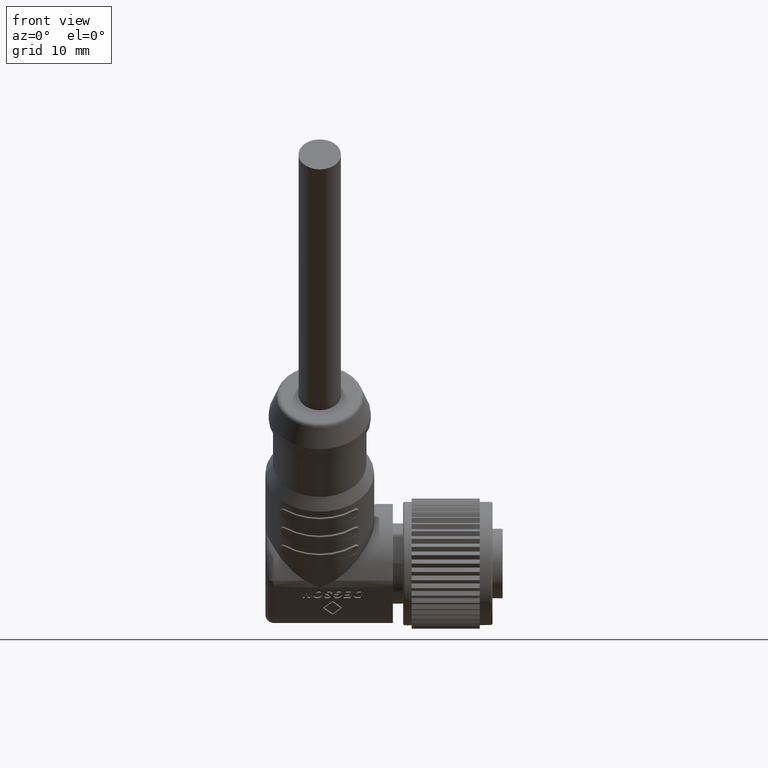
[diagram: clean part render]
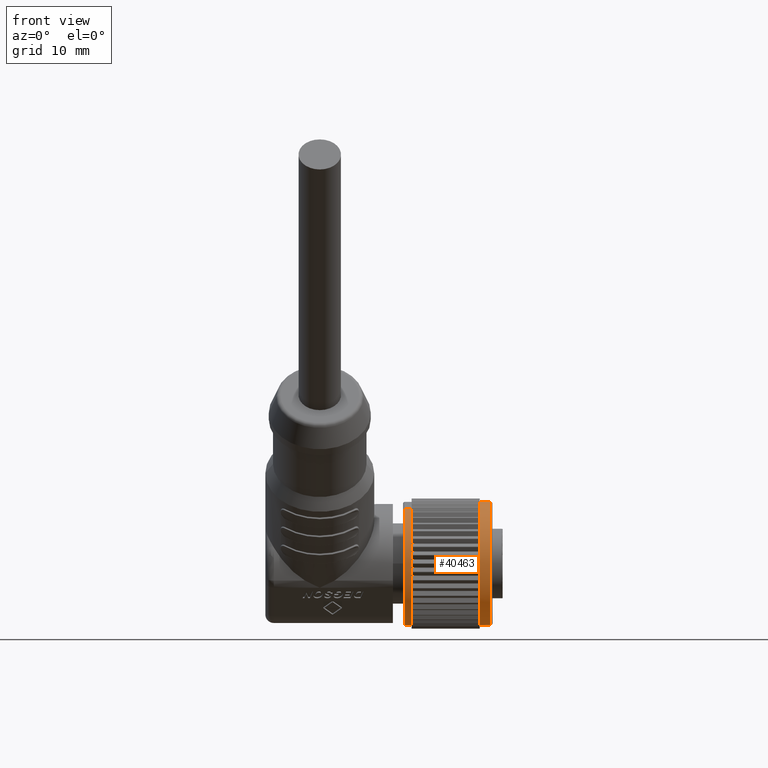
[diagram: same view with one face highlighted and labeled with its STEP entity id]
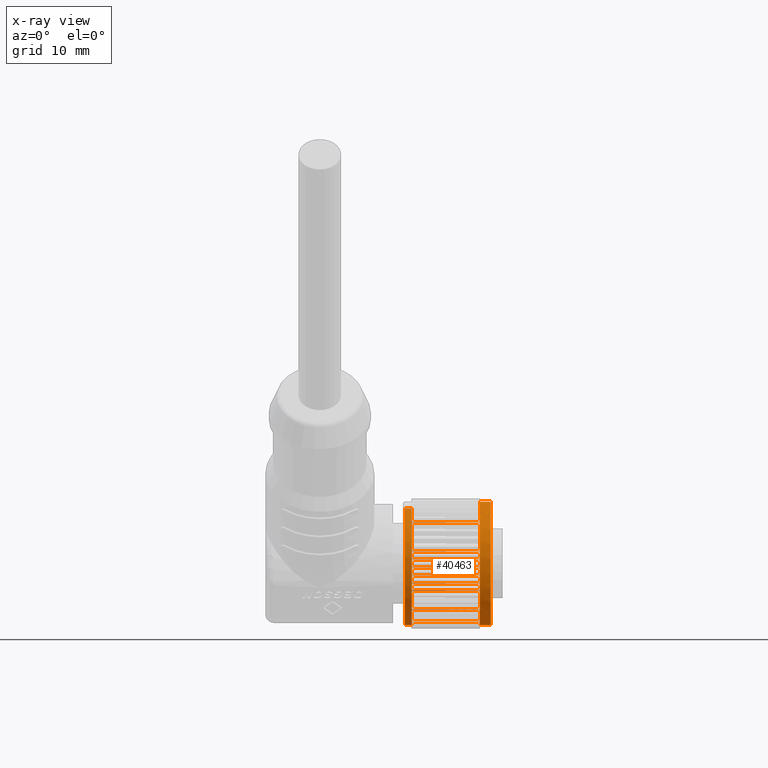
[diagram: x-ray of the same camera — body ghosted, the highlighted face saturated]
A machine part, front view. The second image highlights one B-rep face of the part: STEP entity #40463.
The next image is the same camera in x-ray: the body ghosted, the highlighted face saturated — about 0% of this face is hidden behind the body in this view.
In plain terms, the highlighted cylindrical surface (partial cylindrical patch) has radius 7.25 mm, axis along (-1, 0, 0).
Its self-contained STEP definition (entity closure, byte-faithful):
#9016=DIRECTION('',(-1.E0,5.749289933021E-12,-2.953193245503E-12));
#9017=VECTOR('',#9016,8.E-1);
#9018=CARTESIAN_POINT('',(-1.07E1,3.310589071449E0,6.45E0));
#9019=LINE('',#9018,#9017);
#9025=DIRECTION('',(-1.E0,-5.832556659868E-12,-2.995381720439E-12));
#9026=VECTOR('',#9025,8.E-1);
#9027=CARTESIAN_POINT('',(-1.07E1,-3.310589071449E0,6.45E0));
#9028=LINE('',#9027,#9026);
#9029=CARTESIAN_POINT('',(-1.15E1,0.E0,0.E0));
#9030=DIRECTION('',(1.E0,0.E0,0.E0));
#9031=DIRECTION('',(0.E0,-4.566329753723E-1,8.896551724138E-1));
#9032=AXIS2_PLACEMENT_3D('',#9029,#9030,#9031);
#9034=DIRECTION('',(-1.E0,0.E0,0.E0));
#9035=VECTOR('',#9034,8.E0);
#9036=CARTESIAN_POINT('',(-2.7E0,-4.012530751939E0,6.038385294493E0));
#9037=LINE('',#9036,#9035);
#9038=DIRECTION('',(-1.E0,0.E0,0.E0));
#9039=VECTOR('',#9038,8.E0);
#9040=CARTESIAN_POINT('',(-2.7E0,-3.223129686900E0,6.494146211892E0));
#9041=LINE('',#9040,#9039);
#9042=CARTESIAN_POINT('',(-1.07E1,0.E0,0.E0));
#9043=DIRECTION('',(-1.E0,0.E0,0.E0));
#9044=DIRECTION('',(0.E0,-4.445696119862E-1,8.957443050885E-1));
#9045=AXIS2_PLACEMENT_3D('',#9042,#9043,#9044);
#9047=DIRECTION('',(-1.E0,0.E0,0.E0));
#9048=VECTOR('',#9047,8.E0);
#9049=CARTESIAN_POINT('',(-2.7E0,-3.190035555466E0,6.510466431436E0));
#9050=LINE('',#9049,#9048);
#9051=DIRECTION('',(-1.E0,0.E0,0.E0));
#9052=VECTOR('',#9051,8.E0);
#9053=CARTESIAN_POINT('',(-2.7E0,-2.347899188860E0,6.859290735853E0));
#9054=LINE('',#9053,#9052);
#9055=CARTESIAN_POINT('',(-1.07E1,0.E0,0.E0));
#9056=DIRECTION('',(-1.E0,0.E0,0.E0));
#9057=DIRECTION('',(0.E0,-3.238481639806E-1,9.461090670141E-1));
#9058=AXIS2_PLACEMENT_3D('',#9055,#9056,#9057);
#9060=DIRECTION('',(-1.E0,0.E0,0.E0));
#9061=VECTOR('',#9060,8.E0);
#9062=CARTESIAN_POINT('',(-2.7E0,-2.312957966195E0,6.871151682696E0));
#9063=LINE('',#9062,#9061);
#9064=DIRECTION('',(-1.E0,0.E0,0.E0));
#9065=VECTOR('',#9064,8.E0);
#9066=CARTESIAN_POINT('',(-2.7E0,-1.432495484737E0,7.107070893568E0));
#9067=LINE('',#9066,#9065);
#9068=CARTESIAN_POINT('',(-1.07E1,0.E0,0.E0));
#9069=DIRECTION('',(-1.E0,0.E0,0.E0));
#9070=DIRECTION('',(0.E0,-1.975855841017E-1,9.802856404922E-1));
#9071=AXIS2_PLACEMENT_3D('',#9068,#9069,#9070);
#9073=DIRECTION('',(-1.E0,0.E0,0.E0));
#9074=VECTOR('',#9073,8.E0);
#9075=CARTESIAN_POINT('',(-2.7E0,-1.396305024849E0,7.114269623621E0));
#9076=LINE('',#9075,#9074);
#9077=DIRECTION('',(-1.E0,0.E0,0.E0));
#9078=VECTOR('',#9077,8.E0);
#9079=CARTESIAN_POINT('',(-2.7E0,-4.925813857087E-1,7.233247097843E0));
#9080=LINE('',#9079,#9078);
#9081=CARTESIAN_POINT('',(-1.07E1,0.E0,0.E0));
#9082=DIRECTION('',(-1.E0,0.E0,0.E0));
#9083=DIRECTION('',(0.E0,-6.794226009776E-2,9.976892548749E-1));
#9084=AXIS2_PLACEMENT_3D('',#9081,#9082,#9083);
#9086=DIRECTION('',(-1.E0,0.E0,0.E0));
#9087=VECTOR('',#9086,8.E0);
#9088=CARTESIAN_POINT('',(-2.7E0,-4.557609173989E-1,7.235660438838E0));
#9089=LINE('',#9088,#9087);
#9090=CARTESIAN_POINT('',(-1.4E0,0.E0,0.E0));
#9091=DIRECTION('',(-1.E0,0.E0,0.E0));
#9092=DIRECTION('',(0.E0,6.286357481364E-2,9.980221294950E-1));
#9093=AXIS2_PLACEMENT_3D('',#9090,#9091,#9092);
#9095=DIRECTION('',(-1.E0,7.152398331720E-14,0.E0));
#9096=VECTOR('',#9095,1.3E0);
#9097=CARTESIAN_POINT('',(-1.4E0,4.557609173988E-1,7.235660438838E0));
#9098=LINE('',#9097,#9096);
#9099=DIRECTION('',(-1.E0,0.E0,0.E0));
#9100=VECTOR('',#9099,8.E0);
#9101=CARTESIAN_POINT('',(-2.7E0,4.557609173989E-1,7.235660438838E0));
#9102=LINE('',#9101,#9100);
#9103=CARTESIAN_POINT('',(-1.07E1,0.E0,0.E0));
#9104=DIRECTION('',(-1.E0,0.E0,0.E0));
#9105=DIRECTION('',(0.E0,6.286357481364E-2,9.980221294950E-1));
#9106=AXIS2_PLACEMENT_3D('',#9103,#9104,#9105);
#9108=DIRECTION('',(-1.E0,0.E0,0.E0));
#9109=VECTOR('',#9108,8.E0);
#9110=CARTESIAN_POINT('',(-2.7E0,4.925813857087E-1,7.233247097843E0));
#9111=LINE('',#9110,#9109);
#9112=DIRECTION('',(-1.E0,0.E0,0.E0));
#9113=VECTOR('',#9112,8.E0);
#9114=CARTESIAN_POINT('',(-2.7E0,1.396305024849E0,7.114269623621E0));
#9115=LINE('',#9114,#9113);
#9116=CARTESIAN_POINT('',(-1.07E1,0.E0,0.E0));
#9117=DIRECTION('',(-1.E0,0.E0,0.E0));
#9118=DIRECTION('',(0.E0,1.925937965309E-1,9.812785687754E-1));
#9119=AXIS2_PLACEMENT_3D('',#9116,#9117,#9118);
#9121=DIRECTION('',(-1.E0,0.E0,0.E0));
#9122=VECTOR('',#9121,8.E0);
#9123=CARTESIAN_POINT('',(-2.7E0,1.432495484738E0,7.107070893568E0));
#9124=LINE('',#9123,#9122);
#9125=DIRECTION('',(-1.E0,0.E0,0.E0));
#9126=VECTOR('',#9125,8.E0);
#9127=CARTESIAN_POINT('',(-2.7E0,2.312957966195E0,6.871151682696E0));
#9128=LINE('',#9127,#9126);
#9129=CARTESIAN_POINT('',(-1.07E1,0.E0,0.E0));
#9130=DIRECTION('',(-1.E0,0.E0,0.E0));
#9131=DIRECTION('',(0.E0,3.190286849924E-1,9.477450596822E-1));
#9132=AXIS2_PLACEMENT_3D('',#9129,#9130,#9131);
#9134=DIRECTION('',(-1.E0,0.E0,0.E0));
#9135=VECTOR('',#9134,8.E0);
#9136=CARTESIAN_POINT('',(-2.7E0,2.347899188860E0,6.859290735853E0));
#9137=LINE('',#9136,#9135);
#9138=DIRECTION('',(-1.E0,0.E0,0.E0));
#9139=VECTOR('',#9138,8.E0);
#9140=CARTESIAN_POINT('',(-2.7E0,3.190035555466E0,6.510466431436E0));
#9141=LINE('',#9140,#9139);
#9142=CARTESIAN_POINT('',(-1.07E1,0.E0,0.E0));
#9143=DIRECTION('',(-1.E0,0.E0,0.E0));
#9144=DIRECTION('',(0.E0,4.400049042023E-1,8.979953698533E-1));
#9145=AXIS2_PLACEMENT_3D('',#9142,#9143,#9144);
#9147=DIRECTION('',(-1.E0,0.E0,0.E0));
#9148=VECTOR('',#9147,8.E0);
#9149=CARTESIAN_POINT('',(-2.7E0,3.223129686900E0,6.494146211892E0));
#9150=LINE('',#9149,#9148);
#9151=DIRECTION('',(-1.E0,0.E0,0.E0));
#9152=VECTOR('',#9151,8.E0);
#9153=CARTESIAN_POINT('',(-2.7E0,4.012530751939E0,6.038385294493E0));
#9154=LINE('',#9153,#9152);
#9155=DIRECTION('',(-1.E0,0.E0,0.E0));
#9156=VECTOR('',#9155,8.E0);
#9157=CARTESIAN_POINT('',(-2.7E0,4.012530751939E0,-6.038385294493E0));
#9158=LINE('',#9157,#9156);
#9159=DIRECTION('',(-1.E0,0.E0,0.E0));
#9160=VECTOR('',#9159,8.E0);
#9161=CARTESIAN_POINT('',(-2.7E0,3.223129686900E0,-6.494146211892E0));
#9162=LINE('',#9161,#9160);
#9163=DIRECTION('',(-1.E0,0.E0,0.E0));
#9164=VECTOR('',#9163,8.E0);
#9165=CARTESIAN_POINT('',(-2.7E0,7.235660438838E0,4.557609173989E-1));
#9166=LINE('',#9165,#9164);
#9167=DIRECTION('',(-1.E0,0.E0,0.E0));
#9168=VECTOR('',#9167,8.E0);
#9169=CARTESIAN_POINT('',(-2.7E0,7.235660438838E0,-4.557609173989E-1));
#9170=LINE('',#9169,#9168);
#9171=DIRECTION('',(-1.E0,0.E0,0.E0));
#9172=VECTOR('',#9171,8.E0);
#9173=CARTESIAN_POINT('',(-2.7E0,-7.235660438838E0,-4.557609173989E-1));
#9174=LINE('',#9173,#9172);
#9175=DIRECTION('',(-1.E0,0.E0,0.E0));
#9176=VECTOR('',#9175,8.E0);
#9177=CARTESIAN_POINT('',(-2.7E0,-7.235660438838E0,4.557609173989E-1));
#9178=LINE('',#9177,#9176);
#9179=DIRECTION('',(-1.E0,0.E0,0.E0));
#9180=VECTOR('',#9179,8.E0);
#9181=CARTESIAN_POINT('',(-2.7E0,-1.396305024849E0,-7.114269623621E0));
#9182=LINE('',#9181,#9180);
#9183=DIRECTION('',(-1.E0,0.E0,0.E0));
#9184=VECTOR('',#9183,8.E0);
#9185=CARTESIAN_POINT('',(-2.7E0,-4.925813857087E-1,-7.233247097843E0));
#9186=LINE('',#9185,#9184);
#9187=DIRECTION('',(-1.E0,0.E0,0.E0));
#9188=VECTOR('',#9187,8.E0);
#9189=CARTESIAN_POINT('',(-2.7E0,-2.312957966195E0,-6.871151682696E0));
#9190=LINE('',#9189,#9188);
#9191=DIRECTION('',(-1.E0,0.E0,0.E0));
#9192=VECTOR('',#9191,8.E0);
#9193=CARTESIAN_POINT('',(-2.7E0,-1.432495484738E0,-7.107070893568E0));
#9194=LINE('',#9193,#9192);
#9195=DIRECTION('',(-1.E0,0.E0,0.E0));
#9196=VECTOR('',#9195,8.E0);
#9197=CARTESIAN_POINT('',(-2.7E0,-3.190035555466E0,-6.510466431436E0));
#9198=LINE('',#9197,#9196);
#9199=DIRECTION('',(-1.E0,0.E0,0.E0));
#9200=VECTOR('',#9199,8.E0);
#9201=CARTESIAN_POINT('',(-2.7E0,-2.347899188860E0,-6.859290735853E0));
#9202=LINE('',#9201,#9200);
#9203=DIRECTION('',(-1.E0,0.E0,0.E0));
#9204=VECTOR('',#9203,8.E0);
#9205=CARTESIAN_POINT('',(-2.7E0,-4.766370434762E0,-5.462985711004E0));
#9206=LINE('',#9205,#9204);
#9207=DIRECTION('',(-1.E0,0.E0,0.E0));
#9208=VECTOR('',#9207,8.E0);
#9209=CARTESIAN_POINT('',(-2.7E0,-4.043211542377E0,-6.017885045728E0));
#9210=LINE('',#9209,#9208);
#9211=DIRECTION('',(-1.E0,0.E0,0.E0));
#9212=VECTOR('',#9211,8.E0);
#9213=CARTESIAN_POINT('',(-2.7E0,-5.438656197958E0,-4.794112927373E0));
#9214=LINE('',#9213,#9212);
#9215=DIRECTION('',(-1.E0,0.E0,0.E0));
#9216=VECTOR('',#9215,8.E0);
#9217=CARTESIAN_POINT('',(-2.7E0,-4.794112927373E0,-5.438656197958E0));
#9218=LINE('',#9217,#9216);
#9219=DIRECTION('',(-1.E0,0.E0,0.E0));
#9220=VECTOR('',#9219,8.E0);
#9221=CARTESIAN_POINT('',(-2.7E0,-6.017885045728E0,-4.043211542377E0));
#9222=LINE('',#9221,#9220);
#9223=DIRECTION('',(-1.E0,0.E0,0.E0));
#9224=VECTOR('',#9223,8.E0);
#9225=CARTESIAN_POINT('',(-2.7E0,-5.462985711004E0,-4.766370434762E0));
#9226=LINE('',#9225,#9224);
#9227=DIRECTION('',(-1.E0,0.E0,0.E0));
#9228=VECTOR('',#9227,8.E0);
#9229=CARTESIAN_POINT('',(-2.7E0,-6.494146211892E0,-3.223129686900E0));
#9230=LINE('',#9229,#9228);
#9231=DIRECTION('',(-1.E0,0.E0,0.E0));
#9232=VECTOR('',#9231,8.E0);
#9233=CARTESIAN_POINT('',(-2.7E0,-6.038385294493E0,-4.012530751939E0));
#9234=LINE('',#9233,#9232);
#9235=DIRECTION('',(-1.E0,0.E0,0.E0));
#9236=VECTOR('',#9235,8.E0);
#9237=CARTESIAN_POINT('',(-2.7E0,-6.859290735853E0,-2.347899188860E0));
#9238=LINE('',#9237,#9236);
#9239=DIRECTION('',(-1.E0,0.E0,0.E0));
#9240=VECTOR('',#9239,8.E0);
#9241=CARTESIAN_POINT('',(-2.7E0,-6.510466431436E0,-3.190035555466E0));
#9242=LINE('',#9241,#9240);
#9243=DIRECTION('',(-1.E0,0.E0,0.E0));
#9244=VECTOR('',#9243,8.E0);
#9245=CARTESIAN_POINT('',(-2.7E0,-7.107070893568E0,-1.432495484737E0));
#9246=LINE('',#9245,#9244);
#9247=DIRECTION('',(-1.E0,0.E0,0.E0));
#9248=VECTOR('',#9247,8.E0);
#9249=CARTESIAN_POINT('',(-2.7E0,-6.871151682696E0,-2.312957966195E0));
#9250=LINE('',#9249,#9248);
#9251=DIRECTION('',(-1.E0,0.E0,0.E0));
#9252=VECTOR('',#9251,8.E0);
#9253=CARTESIAN_POINT('',(-2.7E0,-7.233247097843E0,-4.925813857087E-1));
#9254=LINE('',#9253,#9252);
#9255=DIRECTION('',(-1.E0,0.E0,0.E0));
#9256=VECTOR('',#9255,8.E0);
#9257=CARTESIAN_POINT('',(-2.7E0,-7.114269623621E0,-1.396305024849E0));
#9258=LINE('',#9257,#9256);
#9259=DIRECTION('',(-1.E0,0.E0,0.E0));
#9260=VECTOR('',#9259,8.E0);
#9261=CARTESIAN_POINT('',(-2.7E0,-7.114269623621E0,1.396305024849E0));
#9262=LINE('',#9261,#9260);
#9263=DIRECTION('',(-1.E0,0.E0,0.E0));
#9264=VECTOR('',#9263,8.E0);
#9265=CARTESIAN_POINT('',(-2.7E0,-7.233247097843E0,4.925813857087E-1));
#9266=LINE('',#9265,#9264);
#9267=DIRECTION('',(-1.E0,0.E0,0.E0));
#9268=VECTOR('',#9267,8.E0);
#9269=CARTESIAN_POINT('',(-2.7E0,-6.871151682696E0,2.312957966195E0));
#9270=LINE('',#9269,#9268);
#9271=DIRECTION('',(-1.E0,0.E0,0.E0));
#9272=VECTOR('',#9271,8.E0);
#9273=CARTESIAN_POINT('',(-2.7E0,-7.107070893568E0,1.432495484737E0));
#9274=LINE('',#9273,#9272);
#9275=DIRECTION('',(-1.E0,0.E0,0.E0));
#9276=VECTOR('',#9275,8.E0);
#9277=CARTESIAN_POINT('',(-2.7E0,-6.510466431436E0,3.190035555466E0));
#9278=LINE('',#9277,#9276);
#9279=DIRECTION('',(-1.E0,0.E0,0.E0));
#9280=VECTOR('',#9279,8.E0);
#9281=CARTESIAN_POINT('',(-2.7E0,-6.859290735853E0,2.347899188860E0));
#9282=LINE('',#9281,#9280);
#9283=DIRECTION('',(-1.E0,0.E0,0.E0));
#9284=VECTOR('',#9283,8.E0);
#9285=CARTESIAN_POINT('',(-2.7E0,-6.038385294493E0,4.012530751939E0));
#9286=LINE('',#9285,#9284);
#9287=DIRECTION('',(-1.E0,0.E0,0.E0));
#9288=VECTOR('',#9287,8.E0);
#9289=CARTESIAN_POINT('',(-2.7E0,-6.494146211892E0,3.223129686900E0));
#9290=LINE('',#9289,#9288);
#9291=DIRECTION('',(-1.E0,0.E0,0.E0));
#9292=VECTOR('',#9291,8.E0);
#9293=CARTESIAN_POINT('',(-2.7E0,-5.462985711004E0,4.766370434762E0));
#9294=LINE('',#9293,#9292);
#9295=DIRECTION('',(-1.E0,0.E0,0.E0));
#9296=VECTOR('',#9295,8.E0);
#9297=CARTESIAN_POINT('',(-2.7E0,-6.017885045728E0,4.043211542377E0));
#9298=LINE('',#9297,#9296);
#9299=DIRECTION('',(-1.E0,0.E0,0.E0));
#9300=VECTOR('',#9299,8.E0);
#9301=CARTESIAN_POINT('',(-2.7E0,-4.794112927373E0,5.438656197958E0));
#9302=LINE('',#9301,#9300);
#9303=DIRECTION('',(-1.E0,0.E0,0.E0));
#9304=VECTOR('',#9303,8.E0);
#9305=CARTESIAN_POINT('',(-2.7E0,-5.438656197958E0,4.794112927373E0));
#9306=LINE('',#9305,#9304);
#9307=DIRECTION('',(-1.E0,0.E0,0.E0));
#9308=VECTOR('',#9307,8.E0);
#9309=CARTESIAN_POINT('',(-2.7E0,-4.043211542377E0,6.017885045728E0));
#9310=LINE('',#9309,#9308);
#9311=DIRECTION('',(-1.E0,0.E0,0.E0));
#9312=VECTOR('',#9311,8.E0);
#9313=CARTESIAN_POINT('',(-2.7E0,-4.766370434762E0,5.462985711004E0));
#9314=LINE('',#9313,#9312);
#9315=DIRECTION('',(-1.E0,0.E0,0.E0));
#9316=VECTOR('',#9315,8.E0);
#9317=CARTESIAN_POINT('',(-2.7E0,2.347899188860E0,-6.859290735853E0));
#9318=LINE('',#9317,#9316);
#9319=DIRECTION('',(-1.E0,0.E0,0.E0));
#9320=VECTOR('',#9319,8.E0);
#9321=CARTESIAN_POINT('',(-2.7E0,3.190035555466E0,-6.510466431436E0));
#9322=LINE('',#9321,#9320);
#9323=DIRECTION('',(-1.E0,0.E0,0.E0));
#9324=VECTOR('',#9323,8.E0);
#9325=CARTESIAN_POINT('',(-2.7E0,1.432495484737E0,-7.107070893568E0));
#9326=LINE('',#9325,#9324);
#9327=DIRECTION('',(-1.E0,0.E0,0.E0));
#9328=VECTOR('',#9327,8.E0);
#9329=CARTESIAN_POINT('',(-2.7E0,2.312957966195E0,-6.871151682696E0));
#9330=LINE('',#9329,#9328);
#9331=DIRECTION('',(-1.E0,0.E0,0.E0));
#9332=VECTOR('',#9331,8.E0);
#9333=CARTESIAN_POINT('',(-2.7E0,4.925813857087E-1,-7.233247097843E0));
#9334=LINE('',#9333,#9332);
#9335=DIRECTION('',(-1.E0,0.E0,0.E0));
#9336=VECTOR('',#9335,8.E0);
#9337=CARTESIAN_POINT('',(-2.7E0,1.396305024849E0,-7.114269623621E0));
#9338=LINE('',#9337,#9336);
#9339=DIRECTION('',(-1.E0,0.E0,0.E0));
#9340=VECTOR('',#9339,8.E0);
#9341=CARTESIAN_POINT('',(-2.7E0,7.114269623621E0,-1.396305024849E0));
#9342=LINE('',#9341,#9340);
#9343=DIRECTION('',(-1.E0,0.E0,0.E0));
#9344=VECTOR('',#9343,8.E0);
#9345=CARTESIAN_POINT('',(-2.7E0,7.233247097843E0,-4.925813857087E-1));
#9346=LINE('',#9345,#9344);
#9347=DIRECTION('',(-1.E0,0.E0,0.E0));
#9348=VECTOR('',#9347,8.E0);
#9349=CARTESIAN_POINT('',(-2.7E0,6.871151682696E0,-2.312957966195E0));
#9350=LINE('',#9349,#9348);
#9351=DIRECTION('',(-1.E0,0.E0,0.E0));
#9352=VECTOR('',#9351,8.E0);
#9353=CARTESIAN_POINT('',(-2.7E0,7.107070893568E0,-1.432495484737E0));
#9354=LINE('',#9353,#9352);
#9355=DIRECTION('',(-1.E0,0.E0,0.E0));
#9356=VECTOR('',#9355,8.E0);
#9357=CARTESIAN_POINT('',(-2.7E0,6.510466431436E0,-3.190035555466E0));
#9358=LINE('',#9357,#9356);
#9359=DIRECTION('',(-1.E0,0.E0,0.E0));
#9360=VECTOR('',#9359,8.E0);
#9361=CARTESIAN_POINT('',(-2.7E0,6.859290735853E0,-2.347899188860E0));
#9362=LINE('',#9361,#9360);
#9363=DIRECTION('',(-1.E0,0.E0,0.E0));
#9364=VECTOR('',#9363,8.E0);
#9365=CARTESIAN_POINT('',(-2.7E0,6.038385294493E0,-4.012530751939E0));
#9366=LINE('',#9365,#9364);
#9367=DIRECTION('',(-1.E0,0.E0,0.E0));
#9368=VECTOR('',#9367,8.E0);
#9369=CARTESIAN_POINT('',(-2.7E0,6.494146211892E0,-3.223129686900E0));
#9370=LINE('',#9369,#9368);
#9371=DIRECTION('',(-1.E0,0.E0,0.E0));
#9372=VECTOR('',#9371,8.E0);
#9373=CARTESIAN_POINT('',(-2.7E0,5.462985711004E0,-4.766370434762E0));
#9374=LINE('',#9373,#9372);
#9375=DIRECTION('',(-1.E0,0.E0,0.E0));
#9376=VECTOR('',#9375,8.E0);
#9377=CARTESIAN_POINT('',(-2.7E0,6.017885045728E0,-4.043211542377E0));
#9378=LINE('',#9377,#9376);
#9379=DIRECTION('',(-1.E0,0.E0,0.E0));
#9380=VECTOR('',#9379,8.E0);
#9381=CARTESIAN_POINT('',(-2.7E0,4.794112927373E0,-5.438656197958E0));
#9382=LINE('',#9381,#9380);
#9383=DIRECTION('',(-1.E0,0.E0,0.E0));
#9384=VECTOR('',#9383,8.E0);
#9385=CARTESIAN_POINT('',(-2.7E0,5.438656197958E0,-4.794112927373E0));
#9386=LINE('',#9385,#9384);
#9387=DIRECTION('',(-1.E0,0.E0,0.E0));
#9388=VECTOR('',#9387,8.E0);
#9389=CARTESIAN_POINT('',(-2.7E0,4.043211542377E0,-6.017885045728E0));
#9390=LINE('',#9389,#9388);
#9391=DIRECTION('',(-1.E0,0.E0,0.E0));
#9392=VECTOR('',#9391,8.E0);
#9393=CARTESIAN_POINT('',(-2.7E0,4.766370434762E0,-5.462985711004E0));
#9394=LINE('',#9393,#9392);
#9395=DIRECTION('',(-1.E0,0.E0,0.E0));
#9396=VECTOR('',#9395,8.E0);
#9397=CARTESIAN_POINT('',(-2.7E0,4.766370434762E0,5.462985711004E0));
#9398=LINE('',#9397,#9396);
#9399=DIRECTION('',(-1.E0,0.E0,0.E0));
#9400=VECTOR('',#9399,8.E0);
#9401=CARTESIAN_POINT('',(-2.7E0,4.043211542377E0,6.017885045728E0));
#9402=LINE('',#9401,#9400);
#9403=DIRECTION('',(-1.E0,0.E0,0.E0));
#9404=VECTOR('',#9403,8.E0);
#9405=CARTESIAN_POINT('',(-2.7E0,5.438656197958E0,4.794112927373E0));
#9406=LINE('',#9405,#9404);
#9407=DIRECTION('',(-1.E0,0.E0,0.E0));
#9408=VECTOR('',#9407,8.E0);
#9409=CARTESIAN_POINT('',(-2.7E0,4.794112927373E0,5.438656197958E0));
#9410=LINE('',#9409,#9408);
#9411=DIRECTION('',(-1.E0,0.E0,0.E0));
#9412=VECTOR('',#9411,8.E0);
#9413=CARTESIAN_POINT('',(-2.7E0,6.017885045728E0,4.043211542377E0));
#9414=LINE('',#9413,#9412);
#9415=DIRECTION('',(-1.E0,0.E0,0.E0));
#9416=VECTOR('',#9415,8.E0);
#9417=CARTESIAN_POINT('',(-2.7E0,5.462985711004E0,4.766370434762E0));
#9418=LINE('',#9417,#9416);
#9419=DIRECTION('',(-1.E0,0.E0,0.E0));
#9420=VECTOR('',#9419,8.E0);
#9421=CARTESIAN_POINT('',(-2.7E0,6.494146211892E0,3.223129686900E0));
#9422=LINE('',#9421,#9420);
#9423=DIRECTION('',(-1.E0,0.E0,0.E0));
#9424=VECTOR('',#9423,8.E0);
#9425=CARTESIAN_POINT('',(-2.7E0,6.038385294493E0,4.012530751939E0));
#9426=LINE('',#9425,#9424);
#9427=DIRECTION('',(-1.E0,0.E0,0.E0));
#9428=VECTOR('',#9427,8.E0);
#9429=CARTESIAN_POINT('',(-2.7E0,6.859290735853E0,2.347899188860E0));
#9430=LINE('',#9429,#9428);
#9431=DIRECTION('',(-1.E0,0.E0,0.E0));
#9432=VECTOR('',#9431,8.E0);
#9433=CARTESIAN_POINT('',(-2.7E0,6.510466431436E0,3.190035555466E0));
#9434=LINE('',#9433,#9432);
#9435=DIRECTION('',(-1.E0,0.E0,0.E0));
#9436=VECTOR('',#9435,8.E0);
#9437=CARTESIAN_POINT('',(-2.7E0,7.107070893568E0,1.432495484737E0));
#9438=LINE('',#9437,#9436);
#9439=DIRECTION('',(-1.E0,0.E0,0.E0));
#9440=VECTOR('',#9439,8.E0);
#9441=CARTESIAN_POINT('',(-2.7E0,6.871151682696E0,2.312957966195E0));
#9442=LINE('',#9441,#9440);
#9443=DIRECTION('',(-1.E0,0.E0,0.E0));
#9444=VECTOR('',#9443,8.E0);
#9445=CARTESIAN_POINT('',(-2.7E0,7.233247097843E0,4.925813857087E-1));
#9446=LINE('',#9445,#9444);
#9447=DIRECTION('',(-1.E0,0.E0,0.E0));
#9448=VECTOR('',#9447,8.E0);
#9449=CARTESIAN_POINT('',(-2.7E0,7.114269623621E0,1.396305024849E0));
#9450=LINE('',#9449,#9448);
#9451=DIRECTION('',(-1.E0,0.E0,0.E0));
#9452=VECTOR('',#9451,8.E0);
#9453=CARTESIAN_POINT('',(-2.7E0,-4.557609173989E-1,-7.235660438838E0));
#9454=LINE('',#9453,#9452);
#9455=CARTESIAN_POINT('',(-1.07E1,0.E0,0.E0));
#9456=DIRECTION('',(1.E0,0.E0,0.E0));
#9457=DIRECTION('',(0.E0,-6.286357481364E-2,-9.980221294950E-1));
#9458=AXIS2_PLACEMENT_3D('',#9455,#9456,#9457);
#9460=DIRECTION('',(-1.E0,0.E0,0.E0));
#9461=VECTOR('',#9460,8.E0);
#9462=CARTESIAN_POINT('',(-2.7E0,4.557609173989E-1,-7.235660438838E0));
#9463=LINE('',#9462,#9461);
#9464=CARTESIAN_POINT('',(-2.7E0,0.E0,0.E0));
#9465=DIRECTION('',(-1.E0,0.E0,0.E0));
#9466=DIRECTION('',(0.E0,6.286357481364E-2,-9.980221294950E-1));
#9467=AXIS2_PLACEMENT_3D('',#9464,#9465,#9466);
#9469=DIRECTION('',(-1.E0,0.E0,0.E0));
#9470=VECTOR('',#9469,8.E0);
#9471=CARTESIAN_POINT('',(-2.7E0,-3.223129686900E0,-6.494146211892E0));
#9472=LINE('',#9471,#9470);
#9473=DIRECTION('',(-1.E0,0.E0,0.E0));
#9474=VECTOR('',#9473,8.E0);
#9475=CARTESIAN_POINT('',(-2.7E0,-4.012530751939E0,-6.038385294493E0));
#9476=LINE('',#9475,#9474);
#9482=CARTESIAN_POINT('',(-1.07E1,0.E0,0.E0));
#9483=DIRECTION('',(-1.E0,0.E0,0.E0));
#9484=DIRECTION('',(0.E0,-5.534525175088E-1,8.328807302749E-1));
#9485=AXIS2_PLACEMENT_3D('',#9482,#9483,#9484);
#9513=CARTESIAN_POINT('',(-2.7E0,0.E0,0.E0));
#9514=DIRECTION('',(-1.E0,0.E0,0.E0));
#9515=DIRECTION('',(0.E0,-5.534525175088E-1,8.328807302749E-1));
#9516=AXIS2_PLACEMENT_3D('',#9513,#9514,#9515);
#9561=CARTESIAN_POINT('',(-2.7E0,0.E0,0.E0));
#9562=DIRECTION('',(-1.E0,0.E0,0.E0));
#9563=DIRECTION('',(0.E0,-4.400049042023E-1,8.979953698533E-1));
#9564=AXIS2_PLACEMENT_3D('',#9561,#9562,#9563);
#9605=CARTESIAN_POINT('',(-2.7E0,0.E0,0.E0));
#9606=DIRECTION('',(-1.E0,0.E0,0.E0));
#9607=DIRECTION('',(0.E0,-3.190286849924E-1,9.477450596822E-1));
#9608=AXIS2_PLACEMENT_3D('',#9605,#9606,#9607);
#9649=CARTESIAN_POINT('',(-2.7E0,0.E0,0.E0));
#9650=DIRECTION('',(-1.E0,0.E0,0.E0));
#9651=DIRECTION('',(0.E0,-1.925937965309E-1,9.812785687754E-1));
#9652=AXIS2_PLACEMENT_3D('',#9649,#9650,#9651);
#9693=CARTESIAN_POINT('',(-2.7E0,0.E0,0.E0));
#9694=DIRECTION('',(-1.E0,0.E0,0.E0));
#9695=DIRECTION('',(0.E0,-6.286357481364E-2,9.980221294950E-1));
#9696=AXIS2_PLACEMENT_3D('',#9693,#9694,#9695);
#9712=DIRECTION('',(-1.E0,-6.962962591906E-14,0.E0));
#9713=VECTOR('',#9712,1.3E0);
#9714=CARTESIAN_POINT('',(-1.4E0,9.125840446926E-14,7.25E0));
#9715=LINE('',#9714,#9713);
#16474=CARTESIAN_POINT('',(-2.7E0,0.E0,0.E0));
#16475=DIRECTION('',(1.E0,0.E0,0.E0));
#16476=DIRECTION('',(0.E0,1.925937965309E-1,9.812785687754E-1));
#16477=AXIS2_PLACEMENT_3D('',#16474,#16475,#16476);
#16518=CARTESIAN_POINT('',(-2.7E0,0.E0,0.E0));
#16519=DIRECTION('',(1.E0,0.E0,0.E0));
#16520=DIRECTION('',(0.E0,3.190286849924E-1,9.477450596822E-1));
#16521=AXIS2_PLACEMENT_3D('',#16518,#16519,#16520);
#16562=CARTESIAN_POINT('',(-2.7E0,0.E0,0.E0));
#16563=DIRECTION('',(1.E0,0.E0,0.E0));
#16564=DIRECTION('',(0.E0,4.400049042023E-1,8.979953698533E-1));
#16565=AXIS2_PLACEMENT_3D('',#16562,#16563,#16564);
#16585=CARTESIAN_POINT('',(-1.07E1,0.E0,0.E0));
#16586=DIRECTION('',(-1.E0,0.E0,0.E0));
#16587=DIRECTION('',(0.E0,4.566329753723E-1,8.896551724138E-1));
#16588=AXIS2_PLACEMENT_3D('',#16585,#16586,#16587);
#16611=CARTESIAN_POINT('',(-2.7E0,0.E0,0.E0));
#16612=DIRECTION('',(1.E0,0.E0,0.E0));
#16613=DIRECTION('',(0.E0,5.534525175088E-1,8.328807302749E-1));
#16614=AXIS2_PLACEMENT_3D('',#16611,#16612,#16613);
#16625=CARTESIAN_POINT('',(-1.07E1,0.E0,0.E0));
#16626=DIRECTION('',(-1.E0,0.E0,0.E0));
#16627=DIRECTION('',(0.E0,5.534525175088E-1,-8.328807302749E-1));
#16628=AXIS2_PLACEMENT_3D('',#16625,#16626,#16627);
#16651=CARTESIAN_POINT('',(-2.7E0,0.E0,0.E0));
#16652=DIRECTION('',(1.E0,0.E0,0.E0));
#16653=DIRECTION('',(0.E0,4.445696119862E-1,-8.957443050885E-1));
#16654=AXIS2_PLACEMENT_3D('',#16651,#16652,#16653);
#16669=CARTESIAN_POINT('',(-1.07E1,0.E0,0.E0));
#16670=DIRECTION('',(-1.E0,0.E0,0.E0));
#16671=DIRECTION('',(0.E0,9.980221294950E-1,6.286357481364E-2));
#16672=AXIS2_PLACEMENT_3D('',#16669,#16670,#16671);
#16695=CARTESIAN_POINT('',(-2.7E0,0.E0,0.E0));
#16696=DIRECTION('',(1.E0,0.E0,0.E0));
#16697=DIRECTION('',(0.E0,9.980221294950E-1,-6.286357481364E-2));
#16698=AXIS2_PLACEMENT_3D('',#16695,#16696,#16697);
#16713=CARTESIAN_POINT('',(-1.07E1,0.E0,0.E0));
#16714=DIRECTION('',(-1.E0,0.E0,0.E0));
#16715=DIRECTION('',(0.E0,-9.980221294950E-1,-6.286357481364E-2));
#16716=AXIS2_PLACEMENT_3D('',#16713,#16714,#16715);
#16739=CARTESIAN_POINT('',(-2.7E0,0.E0,0.E0));
#16740=DIRECTION('',(-1.E0,0.E0,0.E0));
#16741=DIRECTION('',(0.E0,-9.980221294950E-1,-6.286357481364E-2));
#16742=AXIS2_PLACEMENT_3D('',#16739,#16740,#16741);
#16765=CARTESIAN_POINT('',(-1.07E1,0.E0,0.E0));
#16766=DIRECTION('',(-1.E0,0.E0,0.E0));
#16767=DIRECTION('',(0.E0,-6.794226009776E-2,-9.976892548749E-1));
#16768=AXIS2_PLACEMENT_3D('',#16765,#16766,#16767);
#16792=CARTESIAN_POINT('',(-2.7E0,0.E0,0.E0));
#16793=DIRECTION('',(-1.E0,0.E0,0.E0));
#16794=DIRECTION('',(0.E0,-6.794226009776E-2,-9.976892548749E-1));
#16795=AXIS2_PLACEMENT_3D('',#16792,#16793,#16794);
#16809=CARTESIAN_POINT('',(-1.07E1,0.E0,0.E0));
#16810=DIRECTION('',(-1.E0,0.E0,0.E0));
#16811=DIRECTION('',(0.E0,-1.975855841017E-1,-9.802856404922E-1));
#16812=AXIS2_PLACEMENT_3D('',#16809,#16810,#16811);
#16836=CARTESIAN_POINT('',(-2.7E0,0.E0,0.E0));
#16837=DIRECTION('',(-1.E0,0.E0,0.E0));
#16838=DIRECTION('',(0.E0,-1.975855841017E-1,-9.802856404922E-1));
#16839=AXIS2_PLACEMENT_3D('',#16836,#16837,#16838);
#16853=CARTESIAN_POINT('',(-1.07E1,0.E0,0.E0));
#16854=DIRECTION('',(-1.E0,0.E0,0.E0));
#16855=DIRECTION('',(0.E0,-3.238481639806E-1,-9.461090670141E-1));
#16856=AXIS2_PLACEMENT_3D('',#16853,#16854,#16855);
#16880=CARTESIAN_POINT('',(-2.7E0,0.E0,0.E0));
#16881=DIRECTION('',(-1.E0,0.E0,0.E0));
#16882=DIRECTION('',(0.E0,-3.238481639806E-1,-9.461090670141E-1));
#16883=AXIS2_PLACEMENT_3D('',#16880,#16881,#16882);
#16897=CARTESIAN_POINT('',(-1.07E1,0.E0,0.E0));
#16898=DIRECTION('',(-1.E0,0.E0,0.E0));
#16899=DIRECTION('',(0.E0,-5.576843506726E-1,-8.300531097555E-1));
#16900=AXIS2_PLACEMENT_3D('',#16897,#16898,#16899);
#16924=CARTESIAN_POINT('',(-2.7E0,0.E0,0.E0));
#16925=DIRECTION('',(-1.E0,0.E0,0.E0));
#16926=DIRECTION('',(0.E0,-5.576843506726E-1,-8.300531097555E-1));
#16927=AXIS2_PLACEMENT_3D('',#16924,#16925,#16926);
#16941=CARTESIAN_POINT('',(-1.07E1,0.E0,0.E0));
#16942=DIRECTION('',(-1.E0,0.E0,0.E0));
#16943=DIRECTION('',(0.E0,-6.612569554998E-1,-7.501594755805E-1));
#16944=AXIS2_PLACEMENT_3D('',#16941,#16942,#16943);
#16968=CARTESIAN_POINT('',(-2.7E0,0.E0,0.E0));
#16969=DIRECTION('',(-1.E0,0.E0,0.E0));
#16970=DIRECTION('',(0.E0,-6.612569554998E-1,-7.501594755805E-1));
#16971=AXIS2_PLACEMENT_3D('',#16968,#16969,#16970);
#16985=CARTESIAN_POINT('',(-1.07E1,0.E0,0.E0));
#16986=DIRECTION('',(-1.E0,0.E0,0.E0));
#16987=DIRECTION('',(0.E0,-7.535152704833E-1,-6.574304047947E-1));
#16988=AXIS2_PLACEMENT_3D('',#16985,#16986,#16987);
#17012=CARTESIAN_POINT('',(-2.7E0,0.E0,0.E0));
#17013=DIRECTION('',(-1.E0,0.E0,0.E0));
#17014=DIRECTION('',(0.E0,-7.535152704833E-1,-6.574304047947E-1));
#17015=AXIS2_PLACEMENT_3D('',#17012,#17013,#17014);
#17029=CARTESIAN_POINT('',(-1.07E1,0.E0,0.E0));
#17030=DIRECTION('',(-1.E0,0.E0,0.E0));
#17031=DIRECTION('',(0.E0,-8.328807302749E-1,-5.534525175088E-1));
#17032=AXIS2_PLACEMENT_3D('',#17029,#17030,#17031);
#17056=CARTESIAN_POINT('',(-2.7E0,0.E0,0.E0));
#17057=DIRECTION('',(-1.E0,0.E0,0.E0));
#17058=DIRECTION('',(0.E0,-8.328807302749E-1,-5.534525175088E-1));
#17059=AXIS2_PLACEMENT_3D('',#17056,#17057,#17058);
#17073=CARTESIAN_POINT('',(-1.07E1,0.E0,0.E0));
#17074=DIRECTION('',(-1.E0,0.E0,0.E0));
#17075=DIRECTION('',(0.E0,-8.979953698533E-1,-4.400049042023E-1));
#17076=AXIS2_PLACEMENT_3D('',#17073,#17074,#17075);
#17100=CARTESIAN_POINT('',(-2.7E0,0.E0,0.E0));
#17101=DIRECTION('',(-1.E0,0.E0,0.E0));
#17102=DIRECTION('',(0.E0,-8.979953698533E-1,-4.400049042023E-1));
#17103=AXIS2_PLACEMENT_3D('',#17100,#17101,#17102);
#17117=CARTESIAN_POINT('',(-1.07E1,0.E0,0.E0));
#17118=DIRECTION('',(-1.E0,0.E0,0.E0));
#17119=DIRECTION('',(0.E0,-9.477450596822E-1,-3.190286849924E-1));
#17120=AXIS2_PLACEMENT_3D('',#17117,#17118,#17119);
#17144=CARTESIAN_POINT('',(-2.7E0,0.E0,0.E0));
#17145=DIRECTION('',(-1.E0,0.E0,0.E0));
#17146=DIRECTION('',(0.E0,-9.477450596822E-1,-3.190286849924E-1));
#17147=AXIS2_PLACEMENT_3D('',#17144,#17145,#17146);
#17161=CARTESIAN_POINT('',(-1.07E1,0.E0,0.E0));
#17162=DIRECTION('',(-1.E0,0.E0,0.E0));
#17163=DIRECTION('',(0.E0,-9.812785687754E-1,-1.925937965309E-1));
#17164=AXIS2_PLACEMENT_3D('',#17161,#17162,#17163);
#17188=CARTESIAN_POINT('',(-2.7E0,0.E0,0.E0));
#17189=DIRECTION('',(-1.E0,0.E0,0.E0));
#17190=DIRECTION('',(0.E0,-9.812785687754E-1,-1.925937965309E-1));
#17191=AXIS2_PLACEMENT_3D('',#17188,#17189,#17190);
#17205=CARTESIAN_POINT('',(-1.07E1,0.E0,0.E0));
#17206=DIRECTION('',(-1.E0,0.E0,0.E0));
#17207=DIRECTION('',(0.E0,-9.976892548749E-1,6.794226009776E-2));
#17208=AXIS2_PLACEMENT_3D('',#17205,#17206,#17207);
#17232=CARTESIAN_POINT('',(-2.7E0,0.E0,0.E0));
#17233=DIRECTION('',(-1.E0,0.E0,0.E0));
#17234=DIRECTION('',(0.E0,-9.976892548749E-1,6.794226009776E-2));
#17235=AXIS2_PLACEMENT_3D('',#17232,#17233,#17234);
#17249=CARTESIAN_POINT('',(-1.07E1,0.E0,0.E0));
#17250=DIRECTION('',(-1.E0,0.E0,0.E0));
#17251=DIRECTION('',(0.E0,-9.802856404922E-1,1.975855841017E-1));
#17252=AXIS2_PLACEMENT_3D('',#17249,#17250,#17251);
#17276=CARTESIAN_POINT('',(-2.7E0,0.E0,0.E0));
#17277=DIRECTION('',(-1.E0,0.E0,0.E0));
#17278=DIRECTION('',(0.E0,-9.802856404922E-1,1.975855841017E-1));
#17279=AXIS2_PLACEMENT_3D('',#17276,#17277,#17278);
#17293=CARTESIAN_POINT('',(-1.07E1,0.E0,0.E0));
#17294=DIRECTION('',(-1.E0,0.E0,0.E0));
#17295=DIRECTION('',(0.E0,-9.461090670141E-1,3.238481639806E-1));
#17296=AXIS2_PLACEMENT_3D('',#17293,#17294,#17295);
#17320=CARTESIAN_POINT('',(-2.7E0,0.E0,0.E0));
#17321=DIRECTION('',(-1.E0,0.E0,0.E0));
#17322=DIRECTION('',(0.E0,-9.461090670141E-1,3.238481639806E-1));
#17323=AXIS2_PLACEMENT_3D('',#17320,#17321,#17322);
#17337=CARTESIAN_POINT('',(-1.07E1,0.E0,0.E0));
#17338=DIRECTION('',(-1.E0,0.E0,0.E0));
#17339=DIRECTION('',(0.E0,-8.957443050885E-1,4.445696119862E-1));
#17340=AXIS2_PLACEMENT_3D('',#17337,#17338,#17339);
#17364=CARTESIAN_POINT('',(-2.7E0,0.E0,0.E0));
#17365=DIRECTION('',(-1.E0,0.E0,0.E0));
#17366=DIRECTION('',(0.E0,-8.957443050885E-1,4.445696119862E-1));
#17367=AXIS2_PLACEMENT_3D('',#17364,#17365,#17366);
#17381=CARTESIAN_POINT('',(-1.07E1,0.E0,0.E0));
#17382=DIRECTION('',(-1.E0,0.E0,0.E0));
#17383=DIRECTION('',(0.E0,-8.300531097555E-1,5.576843506726E-1));
#17384=AXIS2_PLACEMENT_3D('',#17381,#17382,#17383);
#17408=CARTESIAN_POINT('',(-2.7E0,0.E0,0.E0));
#17409=DIRECTION('',(-1.E0,0.E0,0.E0));
#17410=DIRECTION('',(0.E0,-8.300531097555E-1,5.576843506726E-1));
#17411=AXIS2_PLACEMENT_3D('',#17408,#17409,#17410);
#17425=CARTESIAN_POINT('',(-1.07E1,0.E0,0.E0));
#17426=DIRECTION('',(-1.E0,0.E0,0.E0));
#17427=DIRECTION('',(0.E0,-7.501594755805E-1,6.612569554998E-1));
#17428=AXIS2_PLACEMENT_3D('',#17425,#17426,#17427);
#17452=CARTESIAN_POINT('',(-2.7E0,0.E0,0.E0));
#17453=DIRECTION('',(-1.E0,0.E0,0.E0));
#17454=DIRECTION('',(0.E0,-7.501594755805E-1,6.612569554998E-1));
#17455=AXIS2_PLACEMENT_3D('',#17452,#17453,#17454);
#17469=CARTESIAN_POINT('',(-1.07E1,0.E0,0.E0));
#17470=DIRECTION('',(-1.E0,0.E0,0.E0));
#17471=DIRECTION('',(0.E0,-6.574304047947E-1,7.535152704833E-1));
#17472=AXIS2_PLACEMENT_3D('',#17469,#17470,#17471);
#17496=CARTESIAN_POINT('',(-2.7E0,0.E0,0.E0));
#17497=DIRECTION('',(-1.E0,0.E0,0.E0));
#17498=DIRECTION('',(0.E0,-6.574304047947E-1,7.535152704833E-1));
#17499=AXIS2_PLACEMENT_3D('',#17496,#17497,#17498);
#17513=CARTESIAN_POINT('',(-1.07E1,0.E0,0.E0));
#17514=DIRECTION('',(-1.E0,0.E0,0.E0));
#17515=DIRECTION('',(0.E0,4.400049042023E-1,-8.979953698533E-1));
#17516=AXIS2_PLACEMENT_3D('',#17513,#17514,#17515);
#17540=CARTESIAN_POINT('',(-2.7E0,0.E0,0.E0));
#17541=DIRECTION('',(1.E0,0.E0,0.E0));
#17542=DIRECTION('',(0.E0,3.238481639806E-1,-9.461090670141E-1));
#17543=AXIS2_PLACEMENT_3D('',#17540,#17541,#17542);
#17557=CARTESIAN_POINT('',(-1.07E1,0.E0,0.E0));
#17558=DIRECTION('',(-1.E0,0.E0,0.E0));
#17559=DIRECTION('',(0.E0,3.190286849924E-1,-9.477450596822E-1));
#17560=AXIS2_PLACEMENT_3D('',#17557,#17558,#17559);
#17584=CARTESIAN_POINT('',(-2.7E0,0.E0,0.E0));
#17585=DIRECTION('',(1.E0,0.E0,0.E0));
#17586=DIRECTION('',(0.E0,1.975855841017E-1,-9.802856404922E-1));
#17587=AXIS2_PLACEMENT_3D('',#17584,#17585,#17586);
#17601=CARTESIAN_POINT('',(-1.07E1,0.E0,0.E0));
#17602=DIRECTION('',(-1.E0,0.E0,0.E0));
#17603=DIRECTION('',(0.E0,1.925937965309E-1,-9.812785687754E-1));
#17604=AXIS2_PLACEMENT_3D('',#17601,#17602,#17603);
#17628=CARTESIAN_POINT('',(-2.7E0,0.E0,0.E0));
#17629=DIRECTION('',(1.E0,0.E0,0.E0));
#17630=DIRECTION('',(0.E0,6.794226009776E-2,-9.976892548749E-1));
#17631=AXIS2_PLACEMENT_3D('',#17628,#17629,#17630);
#17645=CARTESIAN_POINT('',(-1.07E1,0.E0,0.E0));
#17646=DIRECTION('',(-1.E0,0.E0,0.E0));
#17647=DIRECTION('',(0.E0,9.976892548749E-1,-6.794226009776E-2));
#17648=AXIS2_PLACEMENT_3D('',#17645,#17646,#17647);
#17672=CARTESIAN_POINT('',(-2.7E0,0.E0,0.E0));
#17673=DIRECTION('',(1.E0,0.E0,0.E0));
#17674=DIRECTION('',(0.E0,9.812785687754E-1,-1.925937965309E-1));
#17675=AXIS2_PLACEMENT_3D('',#17672,#17673,#17674);
#17689=CARTESIAN_POINT('',(-1.07E1,0.E0,0.E0));
#17690=DIRECTION('',(-1.E0,0.E0,0.E0));
#17691=DIRECTION('',(0.E0,9.802856404922E-1,-1.975855841017E-1));
#17692=AXIS2_PLACEMENT_3D('',#17689,#17690,#17691);
#17716=CARTESIAN_POINT('',(-2.7E0,0.E0,0.E0));
#17717=DIRECTION('',(1.E0,0.E0,0.E0));
#17718=DIRECTION('',(0.E0,9.477450596822E-1,-3.190286849924E-1));
#17719=AXIS2_PLACEMENT_3D('',#17716,#17717,#17718);
#17733=CARTESIAN_POINT('',(-1.07E1,0.E0,0.E0));
#17734=DIRECTION('',(-1.E0,0.E0,0.E0));
#17735=DIRECTION('',(0.E0,9.461090670141E-1,-3.238481639806E-1));
#17736=AXIS2_PLACEMENT_3D('',#17733,#17734,#17735);
#17760=CARTESIAN_POINT('',(-2.7E0,0.E0,0.E0));
#17761=DIRECTION('',(1.E0,0.E0,0.E0));
#17762=DIRECTION('',(0.E0,8.979953698533E-1,-4.400049042023E-1));
#17763=AXIS2_PLACEMENT_3D('',#17760,#17761,#17762);
#17777=CARTESIAN_POINT('',(-1.07E1,0.E0,0.E0));
#17778=DIRECTION('',(-1.E0,0.E0,0.E0));
#17779=DIRECTION('',(0.E0,8.957443050885E-1,-4.445696119862E-1));
#17780=AXIS2_PLACEMENT_3D('',#17777,#17778,#17779);
#17804=CARTESIAN_POINT('',(-2.7E0,0.E0,0.E0));
#17805=DIRECTION('',(1.E0,0.E0,0.E0));
#17806=DIRECTION('',(0.E0,8.328807302749E-1,-5.534525175088E-1));
#17807=AXIS2_PLACEMENT_3D('',#17804,#17805,#17806);
#17821=CARTESIAN_POINT('',(-1.07E1,0.E0,0.E0));
#17822=DIRECTION('',(-1.E0,0.E0,0.E0));
#17823=DIRECTION('',(0.E0,8.300531097555E-1,-5.576843506726E-1));
#17824=AXIS2_PLACEMENT_3D('',#17821,#17822,#17823);
#17848=CARTESIAN_POINT('',(-2.7E0,0.E0,0.E0));
#17849=DIRECTION('',(1.E0,0.E0,0.E0));
#17850=DIRECTION('',(0.E0,7.535152704833E-1,-6.574304047947E-1));
#17851=AXIS2_PLACEMENT_3D('',#17848,#17849,#17850);
#17865=CARTESIAN_POINT('',(-1.07E1,0.E0,0.E0));
#17866=DIRECTION('',(-1.E0,0.E0,0.E0));
#17867=DIRECTION('',(0.E0,7.501594755805E-1,-6.612569554998E-1));
#17868=AXIS2_PLACEMENT_3D('',#17865,#17866,#17867);
#17892=CARTESIAN_POINT('',(-2.7E0,0.E0,0.E0));
#17893=DIRECTION('',(1.E0,0.E0,0.E0));
#17894=DIRECTION('',(0.E0,6.612569554998E-1,-7.501594755805E-1));
#17895=AXIS2_PLACEMENT_3D('',#17892,#17893,#17894);
#17909=CARTESIAN_POINT('',(-1.07E1,0.E0,0.E0));
#17910=DIRECTION('',(-1.E0,0.E0,0.E0));
#17911=DIRECTION('',(0.E0,6.574304047947E-1,-7.535152704833E-1));
#17912=AXIS2_PLACEMENT_3D('',#17909,#17910,#17911);
#17936=CARTESIAN_POINT('',(-2.7E0,0.E0,0.E0));
#17937=DIRECTION('',(1.E0,0.E0,0.E0));
#17938=DIRECTION('',(0.E0,5.576843506726E-1,-8.300531097555E-1));
#17939=AXIS2_PLACEMENT_3D('',#17936,#17937,#17938);
#17953=CARTESIAN_POINT('',(-1.07E1,0.E0,0.E0));
#17954=DIRECTION('',(-1.E0,0.E0,0.E0));
#17955=DIRECTION('',(0.E0,5.576843506726E-1,8.300531097555E-1));
#17956=AXIS2_PLACEMENT_3D('',#17953,#17954,#17955);
#17980=CARTESIAN_POINT('',(-2.7E0,0.E0,0.E0));
#17981=DIRECTION('',(1.E0,0.E0,0.E0));
#17982=DIRECTION('',(0.E0,6.574304047947E-1,7.535152704833E-1));
#17983=AXIS2_PLACEMENT_3D('',#17980,#17981,#17982);
#17997=CARTESIAN_POINT('',(-1.07E1,0.E0,0.E0));
#17998=DIRECTION('',(-1.E0,0.E0,0.E0));
#17999=DIRECTION('',(0.E0,6.612569554998E-1,7.501594755805E-1));
#18000=AXIS2_PLACEMENT_3D('',#17997,#17998,#17999);
#18024=CARTESIAN_POINT('',(-2.7E0,0.E0,0.E0));
#18025=DIRECTION('',(1.E0,0.E0,0.E0));
#18026=DIRECTION('',(0.E0,7.501594755805E-1,6.612569554998E-1));
#18027=AXIS2_PLACEMENT_3D('',#18024,#18025,#18026);
#18041=CARTESIAN_POINT('',(-1.07E1,0.E0,0.E0));
#18042=DIRECTION('',(-1.E0,0.E0,0.E0));
#18043=DIRECTION('',(0.E0,7.535152704833E-1,6.574304047947E-1));
#18044=AXIS2_PLACEMENT_3D('',#18041,#18042,#18043);
#18068=CARTESIAN_POINT('',(-2.7E0,0.E0,0.E0));
#18069=DIRECTION('',(1.E0,0.E0,0.E0));
#18070=DIRECTION('',(0.E0,8.300531097555E-1,5.576843506726E-1));
#18071=AXIS2_PLACEMENT_3D('',#18068,#18069,#18070);
#18085=CARTESIAN_POINT('',(-1.07E1,0.E0,0.E0));
#18086=DIRECTION('',(-1.E0,0.E0,0.E0));
#18087=DIRECTION('',(0.E0,8.328807302749E-1,5.534525175088E-1));
#18088=AXIS2_PLACEMENT_3D('',#18085,#18086,#18087);
#18112=CARTESIAN_POINT('',(-2.7E0,0.E0,0.E0));
#18113=DIRECTION('',(1.E0,0.E0,0.E0));
#18114=DIRECTION('',(0.E0,8.957443050885E-1,4.445696119862E-1));
#18115=AXIS2_PLACEMENT_3D('',#18112,#18113,#18114);
#18129=CARTESIAN_POINT('',(-1.07E1,0.E0,0.E0));
#18130=DIRECTION('',(-1.E0,0.E0,0.E0));
#18131=DIRECTION('',(0.E0,8.979953698533E-1,4.400049042023E-1));
#18132=AXIS2_PLACEMENT_3D('',#18129,#18130,#18131);
#18156=CARTESIAN_POINT('',(-2.7E0,0.E0,0.E0));
#18157=DIRECTION('',(1.E0,0.E0,0.E0));
#18158=DIRECTION('',(0.E0,9.461090670141E-1,3.238481639806E-1));
#18159=AXIS2_PLACEMENT_3D('',#18156,#18157,#18158);
#18173=CARTESIAN_POINT('',(-1.07E1,0.E0,0.E0));
#18174=DIRECTION('',(-1.E0,0.E0,0.E0));
#18175=DIRECTION('',(0.E0,9.477450596822E-1,3.190286849924E-1));
#18176=AXIS2_PLACEMENT_3D('',#18173,#18174,#18175);
#18200=CARTESIAN_POINT('',(-2.7E0,0.E0,0.E0));
#18201=DIRECTION('',(1.E0,0.E0,0.E0));
#18202=DIRECTION('',(0.E0,9.802856404922E-1,1.975855841017E-1));
#18203=AXIS2_PLACEMENT_3D('',#18200,#18201,#18202);
#18217=CARTESIAN_POINT('',(-1.07E1,0.E0,0.E0));
#18218=DIRECTION('',(-1.E0,0.E0,0.E0));
#18219=DIRECTION('',(0.E0,9.812785687754E-1,1.925937965309E-1));
#18220=AXIS2_PLACEMENT_3D('',#18217,#18218,#18219);
#18244=CARTESIAN_POINT('',(-2.7E0,0.E0,0.E0));
#18245=DIRECTION('',(1.E0,0.E0,0.E0));
#18246=DIRECTION('',(0.E0,9.976892548749E-1,6.794226009776E-2));
#18247=AXIS2_PLACEMENT_3D('',#18244,#18245,#18246);
#18287=CARTESIAN_POINT('',(-1.07E1,0.E0,0.E0));
#18288=DIRECTION('',(-1.E0,0.E0,0.E0));
#18289=DIRECTION('',(0.E0,-4.445696119862E-1,-8.957443050885E-1));
#18290=AXIS2_PLACEMENT_3D('',#18287,#18288,#18289);
#18313=CARTESIAN_POINT('',(-2.7E0,0.E0,0.E0));
#18314=DIRECTION('',(-1.E0,0.E0,0.E0));
#18315=DIRECTION('',(0.E0,-4.445696119862E-1,-8.957443050885E-1));
#18316=AXIS2_PLACEMENT_3D('',#18313,#18314,#18315);
#20958=CARTESIAN_POINT('',(-2.7E0,-4.557609173989E-1,7.235660438838E0));
#20960=VERTEX_POINT('',#20958);
#20964=CARTESIAN_POINT('',(-2.7E0,4.557609173989E-1,7.235660438838E0));
#20965=VERTEX_POINT('',#20964);
#20966=CARTESIAN_POINT('',(-2.7E0,4.925813857087E-1,7.233247097843E0));
#20968=VERTEX_POINT('',#20966);
#20972=CARTESIAN_POINT('',(-2.7E0,1.396305024849E0,7.114269623621E0));
#20973=VERTEX_POINT('',#20972);
#20974=CARTESIAN_POINT('',(-2.7E0,1.432495484738E0,7.107070893568E0));
#20976=VERTEX_POINT('',#20974);
#20980=CARTESIAN_POINT('',(-2.7E0,2.312957966195E0,6.871151682696E0));
#20981=VERTEX_POINT('',#20980);
#20982=CARTESIAN_POINT('',(-2.7E0,2.347899188860E0,6.859290735853E0));
#20984=VERTEX_POINT('',#20982);
#20988=CARTESIAN_POINT('',(-2.7E0,3.190035555466E0,6.510466431436E0));
#20989=VERTEX_POINT('',#20988);
#20990=CARTESIAN_POINT('',(-2.7E0,3.223129686900E0,6.494146211892E0));
#20992=VERTEX_POINT('',#20990);
#20996=CARTESIAN_POINT('',(-2.7E0,4.043211542377E0,6.017885045728E0));
#20998=VERTEX_POINT('',#20996);
#21002=CARTESIAN_POINT('',(-2.7E0,4.794112927373E0,5.438656197958E0));
#21004=VERTEX_POINT('',#21002);
#21008=CARTESIAN_POINT('',(-2.7E0,5.462985711004E0,4.766370434762E0));
#21010=VERTEX_POINT('',#21008);
#21014=CARTESIAN_POINT('',(-2.7E0,6.038385294493E0,4.012530751939E0));
#21016=VERTEX_POINT('',#21014);
#21024=CARTESIAN_POINT('',(-2.7E0,7.107070893568E0,1.432495484737E0));
#21025=VERTEX_POINT('',#21024);
#21030=CARTESIAN_POINT('',(-2.7E0,7.233247097843E0,4.925813857087E-1));
#21031=VERTEX_POINT('',#21030);
#21036=CARTESIAN_POINT('',(-2.7E0,7.235660438838E0,-4.557609173989E-1));
#21037=VERTEX_POINT('',#21036);
#21042=CARTESIAN_POINT('',(-2.7E0,7.114269623621E0,-1.396305024849E0));
#21043=VERTEX_POINT('',#21042);
#21048=CARTESIAN_POINT('',(-2.7E0,6.871151682696E0,-2.312957966195E0));
#21049=VERTEX_POINT('',#21048);
#21050=CARTESIAN_POINT('',(-2.7E0,6.859290735853E0,-2.347899188860E0));
#21052=VERTEX_POINT('',#21050);
#21056=CARTESIAN_POINT('',(-2.7E0,6.510466431436E0,-3.190035555466E0));
#21057=VERTEX_POINT('',#21056);
#21058=CARTESIAN_POINT('',(-2.7E0,6.494146211892E0,-3.223129686900E0));
#21060=VERTEX_POINT('',#21058);
#21064=CARTESIAN_POINT('',(-2.7E0,6.038385294493E0,-4.012530751939E0));
#21065=VERTEX_POINT('',#21064);
#21066=CARTESIAN_POINT('',(-2.7E0,6.017885045728E0,-4.043211542377E0));
#21068=VERTEX_POINT('',#21066);
#21072=CARTESIAN_POINT('',(-2.7E0,5.462985711004E0,-4.766370434762E0));
#21073=VERTEX_POINT('',#21072);
#21074=CARTESIAN_POINT('',(-2.7E0,5.438656197958E0,-4.794112927373E0));
#21076=VERTEX_POINT('',#21074);
#21080=CARTESIAN_POINT('',(-2.7E0,4.794112927373E0,-5.438656197958E0));
#21081=VERTEX_POINT('',#21080);
#21082=CARTESIAN_POINT('',(-2.7E0,4.766370434762E0,-5.462985711004E0));
#21084=VERTEX_POINT('',#21082);
#21088=CARTESIAN_POINT('',(-2.7E0,4.043211542377E0,-6.017885045728E0));
#21089=VERTEX_POINT('',#21088);
#21090=CARTESIAN_POINT('',(-2.7E0,4.012530751939E0,-6.038385294493E0));
#21092=VERTEX_POINT('',#21090);
#21096=CARTESIAN_POINT('',(-2.7E0,3.223129686900E0,-6.494146211892E0));
#21097=VERTEX_POINT('',#21096);
#21098=CARTESIAN_POINT('',(-2.7E0,3.190035555466E0,-6.510466431436E0));
#21100=VERTEX_POINT('',#21098);
#21104=CARTESIAN_POINT('',(-2.7E0,2.347899188860E0,-6.859290735853E0));
#21105=VERTEX_POINT('',#21104);
#21106=CARTESIAN_POINT('',(-2.7E0,2.312957966195E0,-6.871151682696E0));
#21108=VERTEX_POINT('',#21106);
#21112=CARTESIAN_POINT('',(-2.7E0,1.396305024849E0,-7.114269623621E0));
#21114=VERTEX_POINT('',#21112);
#21118=CARTESIAN_POINT('',(-2.7E0,4.557609173989E-1,-7.235660438838E0));
#21120=VERTEX_POINT('',#21118);
#21124=CARTESIAN_POINT('',(-2.7E0,-4.925813857087E-1,-7.233247097843E0));
#21126=VERTEX_POINT('',#21124);
#21130=CARTESIAN_POINT('',(-2.7E0,-1.432495484738E0,-7.107070893568E0));
#21132=VERTEX_POINT('',#21130);
#21140=CARTESIAN_POINT('',(-2.7E0,-4.012530751939E0,-6.038385294493E0));
#21141=VERTEX_POINT('',#21140);
#21146=CARTESIAN_POINT('',(-2.7E0,-4.766370434762E0,-5.462985711004E0));
#21147=VERTEX_POINT('',#21146);
#21152=CARTESIAN_POINT('',(-2.7E0,-5.438656197958E0,-4.794112927373E0));
#21153=VERTEX_POINT('',#21152);
#21158=CARTESIAN_POINT('',(-2.7E0,-6.017885045728E0,-4.043211542377E0));
#21159=VERTEX_POINT('',#21158);
#21164=CARTESIAN_POINT('',(-2.7E0,-6.494146211892E0,-3.223129686900E0));
#21165=VERTEX_POINT('',#21164);
#21166=CARTESIAN_POINT('',(-2.7E0,-6.510466431436E0,-3.190035555466E0));
#21168=VERTEX_POINT('',#21166);
#21172=CARTESIAN_POINT('',(-2.7E0,-6.859290735853E0,-2.347899188860E0));
#21173=VERTEX_POINT('',#21172);
#21174=CARTESIAN_POINT('',(-2.7E0,-6.871151682696E0,-2.312957966195E0));
#21176=VERTEX_POINT('',#21174);
#21180=CARTESIAN_POINT('',(-2.7E0,-7.107070893568E0,-1.432495484737E0));
#21181=VERTEX_POINT('',#21180);
#21182=CARTESIAN_POINT('',(-2.7E0,-7.114269623621E0,-1.396305024849E0));
#21184=VERTEX_POINT('',#21182);
#21188=CARTESIAN_POINT('',(-2.7E0,-7.233247097843E0,-4.925813857087E-1));
#21189=VERTEX_POINT('',#21188);
#21190=CARTESIAN_POINT('',(-2.7E0,-1.396305024849E0,-7.114269623621E0));
#21191=VERTEX_POINT('',#21190);
#21192=CARTESIAN_POINT('',(-2.7E0,-2.312957966195E0,-6.871151682696E0));
#21193=VERTEX_POINT('',#21192);
#21194=CARTESIAN_POINT('',(-2.7E0,-2.347899188860E0,-6.859290735853E0));
#21195=CARTESIAN_POINT('',(-2.7E0,-3.190035555466E0,-6.510466431436E0));
#21196=VERTEX_POINT('',#21194);
#21197=VERTEX_POINT('',#21195);
#21198=CARTESIAN_POINT('',(-2.7E0,-3.223129686900E0,-6.494146211892E0));
#21199=VERTEX_POINT('',#21198);
#21200=CARTESIAN_POINT('',(-2.7E0,-4.043211542377E0,-6.017885045728E0));
#21201=VERTEX_POINT('',#21200);
#21202=CARTESIAN_POINT('',(-2.7E0,-4.794112927373E0,-5.438656197958E0));
#21203=VERTEX_POINT('',#21202);
#21204=CARTESIAN_POINT('',(-2.7E0,-5.462985711004E0,-4.766370434762E0));
#21205=VERTEX_POINT('',#21204);
#21206=CARTESIAN_POINT('',(-2.7E0,-6.038385294493E0,-4.012530751939E0));
#21207=VERTEX_POINT('',#21206);
#21208=CARTESIAN_POINT('',(-2.7E0,-7.235660438838E0,-4.557609173989E-1));
#21209=CARTESIAN_POINT('',(-2.7E0,-7.235660438838E0,4.557609173989E-1));
#21210=VERTEX_POINT('',#21208);
#21211=VERTEX_POINT('',#21209);
#21212=CARTESIAN_POINT('',(-2.7E0,-7.233247097843E0,4.925813857087E-1));
#21213=CARTESIAN_POINT('',(-2.7E0,-7.114269623621E0,1.396305024849E0));
#21214=VERTEX_POINT('',#21212);
#21215=VERTEX_POINT('',#21213);
#21216=CARTESIAN_POINT('',(-2.7E0,-7.107070893568E0,1.432495484737E0));
#21217=CARTESIAN_POINT('',(-2.7E0,-6.871151682696E0,2.312957966195E0));
#21218=VERTEX_POINT('',#21216);
#21219=VERTEX_POINT('',#21217);
#21220=CARTESIAN_POINT('',(-2.7E0,-6.859290735853E0,2.347899188860E0));
#21221=CARTESIAN_POINT('',(-2.7E0,-6.510466431436E0,3.190035555466E0));
#21222=VERTEX_POINT('',#21220);
#21223=VERTEX_POINT('',#21221);
#21224=CARTESIAN_POINT('',(-2.7E0,-6.494146211892E0,3.223129686900E0));
#21225=CARTESIAN_POINT('',(-2.7E0,-6.038385294493E0,4.012530751939E0));
#21226=VERTEX_POINT('',#21224);
#21227=VERTEX_POINT('',#21225);
#21228=CARTESIAN_POINT('',(-2.7E0,4.925813857087E-1,-7.233247097843E0));
#21229=VERTEX_POINT('',#21228);
#21230=CARTESIAN_POINT('',(-2.7E0,1.432495484737E0,-7.107070893568E0));
#21231=VERTEX_POINT('',#21230);
#21232=CARTESIAN_POINT('',(-2.7E0,7.107070893568E0,-1.432495484737E0));
#21233=VERTEX_POINT('',#21232);
#21234=CARTESIAN_POINT('',(-2.7E0,7.233247097843E0,-4.925813857087E-1));
#21235=VERTEX_POINT('',#21234);
#21236=CARTESIAN_POINT('',(-2.7E0,7.235660438838E0,4.557609173989E-1));
#21237=VERTEX_POINT('',#21236);
#21238=CARTESIAN_POINT('',(-2.7E0,7.114269623621E0,1.396305024849E0));
#21239=VERTEX_POINT('',#21238);
#21240=CARTESIAN_POINT('',(-2.7E0,6.871151682696E0,2.312957966195E0));
#21241=VERTEX_POINT('',#21240);
#21242=CARTESIAN_POINT('',(-2.7E0,6.859290735853E0,2.347899188860E0));
#21243=CARTESIAN_POINT('',(-2.7E0,6.510466431436E0,3.190035555466E0));
#21244=VERTEX_POINT('',#21242);
#21245=VERTEX_POINT('',#21243);
#21246=CARTESIAN_POINT('',(-2.7E0,6.494146211892E0,3.223129686900E0));
#21247=VERTEX_POINT('',#21246);
#21248=CARTESIAN_POINT('',(-2.7E0,-4.557609173989E-1,-7.235660438838E0));
#21249=VERTEX_POINT('',#21248);
#21250=CARTESIAN_POINT('',(-2.7E0,4.012530751939E0,6.038385294493E0));
#21251=VERTEX_POINT('',#21250);
#21252=CARTESIAN_POINT('',(-2.7E0,4.766370434762E0,5.462985711004E0));
#21253=VERTEX_POINT('',#21252);
#21278=CARTESIAN_POINT('',(-2.7E0,5.438656197958E0,4.794112927373E0));
#21279=VERTEX_POINT('',#21278);
#21280=CARTESIAN_POINT('',(-2.7E0,6.017885045728E0,4.043211542377E0));
#21281=VERTEX_POINT('',#21280);
#21282=CARTESIAN_POINT('',(-2.7E0,-6.017885045728E0,4.043211542377E0));
#21283=CARTESIAN_POINT('',(-2.7E0,-5.462985711004E0,4.766370434762E0));
#21284=VERTEX_POINT('',#21282);
#21285=VERTEX_POINT('',#21283);
#21286=CARTESIAN_POINT('',(-2.7E0,-5.438656197958E0,4.794112927373E0));
#21287=CARTESIAN_POINT('',(-2.7E0,-4.794112927373E0,5.438656197958E0));
#21288=VERTEX_POINT('',#21286);
#21289=VERTEX_POINT('',#21287);
#21290=CARTESIAN_POINT('',(-2.7E0,-4.766370434762E0,5.462985711004E0));
#21291=CARTESIAN_POINT('',(-2.7E0,-4.043211542377E0,6.017885045728E0));
#21292=VERTEX_POINT('',#21290);
#21293=VERTEX_POINT('',#21291);
#21294=CARTESIAN_POINT('',(-2.7E0,-4.012530751939E0,6.038385294493E0));
#21295=CARTESIAN_POINT('',(-2.7E0,-3.223129686900E0,6.494146211892E0));
#21296=VERTEX_POINT('',#21294);
#21297=VERTEX_POINT('',#21295);
#21298=CARTESIAN_POINT('',(-2.7E0,-3.190035555466E0,6.510466431436E0));
#21299=CARTESIAN_POINT('',(-2.7E0,-2.347899188860E0,6.859290735853E0));
#21300=VERTEX_POINT('',#21298);
#21301=VERTEX_POINT('',#21299);
#21302=CARTESIAN_POINT('',(-2.7E0,-2.312957966195E0,6.871151682696E0));
#21303=CARTESIAN_POINT('',(-2.7E0,-1.432495484737E0,7.107070893568E0));
#21304=VERTEX_POINT('',#21302);
#21305=VERTEX_POINT('',#21303);
#21306=CARTESIAN_POINT('',(-2.7E0,-1.396305024849E0,7.114269623621E0));
#21307=CARTESIAN_POINT('',(-2.7E0,-4.925813857087E-1,7.233247097843E0));
#21308=VERTEX_POINT('',#21306);
#21309=VERTEX_POINT('',#21307);
#21310=CARTESIAN_POINT('',(-1.4E0,0.E0,7.25E0));
#21311=CARTESIAN_POINT('',(-1.4E0,4.557609173989E-1,7.235660438838E0));
#21312=VERTEX_POINT('',#21310);
#21313=VERTEX_POINT('',#21311);
#21318=CARTESIAN_POINT('',(-2.7E0,0.E0,7.25E0));
#21319=VERTEX_POINT('',#21318);
#21544=CARTESIAN_POINT('',(-1.07E1,4.557609173989E-1,7.235660438838E0));
#21545=CARTESIAN_POINT('',(-1.07E1,4.925813857087E-1,7.233247097843E0));
#21546=VERTEX_POINT('',#21544);
#21547=VERTEX_POINT('',#21545);
#21548=CARTESIAN_POINT('',(-1.07E1,1.396305024849E0,7.114269623621E0));
#21549=CARTESIAN_POINT('',(-1.07E1,1.432495484737E0,7.107070893568E0));
#21550=VERTEX_POINT('',#21548);
#21551=VERTEX_POINT('',#21549);
#21552=CARTESIAN_POINT('',(-1.07E1,2.312957966195E0,6.871151682696E0));
#21553=CARTESIAN_POINT('',(-1.07E1,2.347899188860E0,6.859290735853E0));
#21554=VERTEX_POINT('',#21552);
#21555=VERTEX_POINT('',#21553);
#21556=CARTESIAN_POINT('',(-1.07E1,3.190035555466E0,6.510466431436E0));
#21557=CARTESIAN_POINT('',(-1.07E1,3.223129686900E0,6.494146211892E0));
#21558=VERTEX_POINT('',#21556);
#21559=VERTEX_POINT('',#21557);
#21560=CARTESIAN_POINT('',(-1.07E1,-3.223129686900E0,6.494146211892E0));
#21561=CARTESIAN_POINT('',(-1.07E1,-3.190035555466E0,6.510466431436E0));
#21562=VERTEX_POINT('',#21560);
#21563=VERTEX_POINT('',#21561);
#21564=CARTESIAN_POINT('',(-1.07E1,-2.347899188860E0,6.859290735853E0));
#21565=CARTESIAN_POINT('',(-1.07E1,-2.312957966195E0,6.871151682696E0));
#21566=VERTEX_POINT('',#21564);
#21567=VERTEX_POINT('',#21565);
#21568=CARTESIAN_POINT('',(-1.07E1,-1.432495484737E0,7.107070893568E0));
#21569=CARTESIAN_POINT('',(-1.07E1,-1.396305024849E0,7.114269623621E0));
#21570=VERTEX_POINT('',#21568);
#21571=VERTEX_POINT('',#21569);
#21572=CARTESIAN_POINT('',(-1.07E1,-4.925813857087E-1,7.233247097843E0));
#21573=CARTESIAN_POINT('',(-1.07E1,-4.557609173989E-1,7.235660438838E0));
#21574=VERTEX_POINT('',#21572);
#21575=VERTEX_POINT('',#21573);
#21576=CARTESIAN_POINT('',(-1.07E1,4.043211542377E0,6.017885045728E0));
#21577=CARTESIAN_POINT('',(-1.07E1,4.766370434762E0,5.462985711004E0));
#21578=VERTEX_POINT('',#21576);
#21579=VERTEX_POINT('',#21577);
#21580=CARTESIAN_POINT('',(-1.07E1,4.794112927373E0,5.438656197958E0));
#21581=CARTESIAN_POINT('',(-1.07E1,5.438656197958E0,4.794112927373E0));
#21582=VERTEX_POINT('',#21580);
#21583=VERTEX_POINT('',#21581);
#21584=CARTESIAN_POINT('',(-1.07E1,5.462985711004E0,4.766370434762E0));
#21585=CARTESIAN_POINT('',(-1.07E1,6.017885045728E0,4.043211542377E0));
#21586=VERTEX_POINT('',#21584);
#21587=VERTEX_POINT('',#21585);
#21588=CARTESIAN_POINT('',(-1.07E1,6.038385294493E0,4.012530751939E0));
#21589=CARTESIAN_POINT('',(-1.07E1,6.494146211892E0,3.223129686900E0));
#21590=VERTEX_POINT('',#21588);
#21591=VERTEX_POINT('',#21589);
#21592=CARTESIAN_POINT('',(-1.07E1,6.510466431436E0,3.190035555466E0));
#21593=CARTESIAN_POINT('',(-1.07E1,6.859290735853E0,2.347899188860E0));
#21594=VERTEX_POINT('',#21592);
#21595=VERTEX_POINT('',#21593);
#21596=CARTESIAN_POINT('',(-1.07E1,6.871151682696E0,2.312957966195E0));
#21597=CARTESIAN_POINT('',(-1.07E1,7.107070893568E0,1.432495484737E0));
#21598=VERTEX_POINT('',#21596);
#21599=VERTEX_POINT('',#21597);
#21600=CARTESIAN_POINT('',(-1.07E1,7.114269623621E0,1.396305024849E0));
#21601=CARTESIAN_POINT('',(-1.07E1,7.233247097843E0,4.925813857087E-1));
#21602=VERTEX_POINT('',#21600);
#21603=VERTEX_POINT('',#21601);
#21604=CARTESIAN_POINT('',(-1.07E1,7.233247097843E0,-4.925813857087E-1));
#21605=CARTESIAN_POINT('',(-1.07E1,7.114269623621E0,-1.396305024849E0));
#21606=VERTEX_POINT('',#21604);
#21607=VERTEX_POINT('',#21605);
#21608=CARTESIAN_POINT('',(-1.07E1,7.107070893568E0,-1.432495484737E0));
#21609=CARTESIAN_POINT('',(-1.07E1,6.871151682696E0,-2.312957966195E0));
#21610=VERTEX_POINT('',#21608);
#21611=VERTEX_POINT('',#21609);
#21612=CARTESIAN_POINT('',(-1.07E1,6.859290735853E0,-2.347899188860E0));
#21613=CARTESIAN_POINT('',(-1.07E1,6.510466431436E0,-3.190035555466E0));
#21614=VERTEX_POINT('',#21612);
#21615=VERTEX_POINT('',#21613);
#21616=CARTESIAN_POINT('',(-1.07E1,6.494146211892E0,-3.223129686900E0));
#21617=CARTESIAN_POINT('',(-1.07E1,6.038385294493E0,-4.012530751939E0));
#21618=VERTEX_POINT('',#21616);
#21619=VERTEX_POINT('',#21617);
#21620=CARTESIAN_POINT('',(-1.07E1,6.017885045728E0,-4.043211542377E0));
#21621=CARTESIAN_POINT('',(-1.07E1,5.462985711004E0,-4.766370434762E0));
#21622=VERTEX_POINT('',#21620);
#21623=VERTEX_POINT('',#21621);
#21624=CARTESIAN_POINT('',(-1.07E1,5.438656197958E0,-4.794112927373E0));
#21625=CARTESIAN_POINT('',(-1.07E1,4.794112927373E0,-5.438656197958E0));
#21626=VERTEX_POINT('',#21624);
#21627=VERTEX_POINT('',#21625);
#21628=CARTESIAN_POINT('',(-1.07E1,4.766370434762E0,-5.462985711004E0));
#21629=CARTESIAN_POINT('',(-1.07E1,4.043211542377E0,-6.017885045728E0));
#21630=VERTEX_POINT('',#21628);
#21631=VERTEX_POINT('',#21629);
#21632=CARTESIAN_POINT('',(-1.07E1,3.190035555466E0,-6.510466431436E0));
#21633=CARTESIAN_POINT('',(-1.07E1,2.347899188860E0,-6.859290735853E0));
#21634=VERTEX_POINT('',#21632);
#21635=VERTEX_POINT('',#21633);
#21636=CARTESIAN_POINT('',(-1.07E1,2.312957966195E0,-6.871151682696E0));
#21637=CARTESIAN_POINT('',(-1.07E1,1.432495484737E0,-7.107070893568E0));
#21638=VERTEX_POINT('',#21636);
#21639=VERTEX_POINT('',#21637);
#21640=CARTESIAN_POINT('',(-1.07E1,1.396305024849E0,-7.114269623621E0));
#21641=CARTESIAN_POINT('',(-1.07E1,4.925813857087E-1,-7.233247097843E0));
#21642=VERTEX_POINT('',#21640);
#21643=VERTEX_POINT('',#21641);
#21644=CARTESIAN_POINT('',(-1.07E1,-4.925813857087E-1,-7.233247097843E0));
#21645=CARTESIAN_POINT('',(-1.07E1,-1.396305024849E0,-7.114269623621E0));
#21646=VERTEX_POINT('',#21644);
#21647=VERTEX_POINT('',#21645);
#21648=CARTESIAN_POINT('',(-1.07E1,-1.432495484737E0,-7.107070893568E0));
#21649=CARTESIAN_POINT('',(-1.07E1,-2.312957966195E0,-6.871151682696E0));
#21650=VERTEX_POINT('',#21648);
#21651=VERTEX_POINT('',#21649);
#21652=CARTESIAN_POINT('',(-1.07E1,-2.347899188860E0,-6.859290735853E0));
#21653=CARTESIAN_POINT('',(-1.07E1,-3.190035555466E0,-6.510466431436E0));
#21654=VERTEX_POINT('',#21652);
#21655=VERTEX_POINT('',#21653);
#21656=CARTESIAN_POINT('',(-1.07E1,-4.043211542377E0,-6.017885045728E0));
#21657=CARTESIAN_POINT('',(-1.07E1,-4.766370434762E0,-5.462985711004E0));
#21658=VERTEX_POINT('',#21656);
#21659=VERTEX_POINT('',#21657);
#21660=CARTESIAN_POINT('',(-1.07E1,-4.794112927373E0,-5.438656197958E0));
#21661=CARTESIAN_POINT('',(-1.07E1,-5.438656197958E0,-4.794112927373E0));
#21662=VERTEX_POINT('',#21660);
#21663=VERTEX_POINT('',#21661);
#21664=CARTESIAN_POINT('',(-1.07E1,-5.462985711004E0,-4.766370434762E0));
#21665=CARTESIAN_POINT('',(-1.07E1,-6.017885045728E0,-4.043211542377E0));
#21666=VERTEX_POINT('',#21664);
#21667=VERTEX_POINT('',#21665);
#21668=CARTESIAN_POINT('',(-1.07E1,-6.038385294493E0,-4.012530751939E0));
#21669=CARTESIAN_POINT('',(-1.07E1,-6.494146211892E0,-3.223129686900E0));
#21670=VERTEX_POINT('',#21668);
#21671=VERTEX_POINT('',#21669);
#21672=CARTESIAN_POINT('',(-1.07E1,-6.510466431436E0,-3.190035555466E0));
#21673=CARTESIAN_POINT('',(-1.07E1,-6.859290735853E0,-2.347899188860E0));
#21674=VERTEX_POINT('',#21672);
#21675=VERTEX_POINT('',#21673);
#21676=CARTESIAN_POINT('',(-1.07E1,-6.871151682696E0,-2.312957966195E0));
#21677=CARTESIAN_POINT('',(-1.07E1,-7.107070893568E0,-1.432495484737E0));
#21678=VERTEX_POINT('',#21676);
#21679=VERTEX_POINT('',#21677);
#21680=CARTESIAN_POINT('',(-1.07E1,-7.114269623621E0,-1.396305024849E0));
#21681=CARTESIAN_POINT('',(-1.07E1,-7.233247097843E0,-4.925813857087E-1));
#21682=VERTEX_POINT('',#21680);
#21683=VERTEX_POINT('',#21681);
#21684=CARTESIAN_POINT('',(-1.07E1,-7.233247097843E0,4.925813857087E-1));
#21685=CARTESIAN_POINT('',(-1.07E1,-7.114269623621E0,1.396305024849E0));
#21686=VERTEX_POINT('',#21684);
#21687=VERTEX_POINT('',#21685);
#21688=CARTESIAN_POINT('',(-1.07E1,-7.107070893568E0,1.432495484737E0));
#21689=CARTESIAN_POINT('',(-1.07E1,-6.871151682696E0,2.312957966195E0));
#21690=VERTEX_POINT('',#21688);
#21691=VERTEX_POINT('',#21689);
#21692=CARTESIAN_POINT('',(-1.07E1,-6.859290735853E0,2.347899188860E0));
#21693=CARTESIAN_POINT('',(-1.07E1,-6.510466431436E0,3.190035555466E0));
#21694=VERTEX_POINT('',#21692);
#21695=VERTEX_POINT('',#21693);
#21696=CARTESIAN_POINT('',(-1.07E1,-6.494146211892E0,3.223129686900E0));
#21697=CARTESIAN_POINT('',(-1.07E1,-6.038385294493E0,4.012530751939E0));
#21698=VERTEX_POINT('',#21696);
#21699=VERTEX_POINT('',#21697);
#21700=CARTESIAN_POINT('',(-1.07E1,-6.017885045728E0,4.043211542377E0));
#21701=CARTESIAN_POINT('',(-1.07E1,-5.462985711004E0,4.766370434762E0));
#21702=VERTEX_POINT('',#21700);
#21703=VERTEX_POINT('',#21701);
#21704=CARTESIAN_POINT('',(-1.07E1,-5.438656197958E0,4.794112927373E0));
#21705=CARTESIAN_POINT('',(-1.07E1,-4.794112927373E0,5.438656197958E0));
#21706=VERTEX_POINT('',#21704);
#21707=VERTEX_POINT('',#21705);
#21708=CARTESIAN_POINT('',(-1.07E1,-4.766370434762E0,5.462985711004E0));
#21709=CARTESIAN_POINT('',(-1.07E1,-4.043211542377E0,6.017885045728E0));
#21710=VERTEX_POINT('',#21708);
#21711=VERTEX_POINT('',#21709);
#21712=CARTESIAN_POINT('',(-1.07E1,4.012530751939E0,6.038385294493E0));
#21713=VERTEX_POINT('',#21712);
#21714=CARTESIAN_POINT('',(-1.07E1,7.235660438838E0,4.557609173989E-1));
#21715=VERTEX_POINT('',#21714);
#21716=CARTESIAN_POINT('',(-1.07E1,7.235660438838E0,-4.557609173989E-1));
#21717=VERTEX_POINT('',#21716);
#21718=CARTESIAN_POINT('',(-1.07E1,4.012530751939E0,-6.038385294493E0));
#21719=VERTEX_POINT('',#21718);
#21720=CARTESIAN_POINT('',(-1.07E1,3.223129686900E0,-6.494146211892E0));
#21721=VERTEX_POINT('',#21720);
#21722=CARTESIAN_POINT('',(-1.07E1,4.557609173989E-1,-7.235660438838E0));
#21723=VERTEX_POINT('',#21722);
#21724=CARTESIAN_POINT('',(-1.07E1,-4.557609173989E-1,-7.235660438838E0));
#21725=VERTEX_POINT('',#21724);
#21726=CARTESIAN_POINT('',(-1.07E1,-3.223129686900E0,-6.494146211892E0));
#21727=VERTEX_POINT('',#21726);
#21728=CARTESIAN_POINT('',(-1.07E1,-4.012530751939E0,-6.038385294493E0));
#21729=VERTEX_POINT('',#21728);
#21730=CARTESIAN_POINT('',(-1.07E1,-7.235660438838E0,-4.557609173989E-1));
#21731=VERTEX_POINT('',#21730);
#21732=CARTESIAN_POINT('',(-1.07E1,-7.235660438838E0,4.557609173989E-1));
#21733=VERTEX_POINT('',#21732);
#21734=CARTESIAN_POINT('',(-1.07E1,-4.012530751939E0,6.038385294493E0));
#21735=VERTEX_POINT('',#21734);
#21736=CARTESIAN_POINT('',(-1.07E1,3.310589071449E0,6.45E0));
#21737=VERTEX_POINT('',#21736);
#21738=CARTESIAN_POINT('',(-1.07E1,-3.310589071449E0,6.45E0));
#21739=VERTEX_POINT('',#21738);
#21740=CARTESIAN_POINT('',(-1.15E1,3.310589071449E0,6.45E0));
#21741=CARTESIAN_POINT('',(-1.15E1,-3.310589071449E0,6.45E0));
#21742=VERTEX_POINT('',#21740);
#21743=VERTEX_POINT('',#21741);
#39990=CARTESIAN_POINT('',(-6.75E-1,0.E0,0.E0));
#39991=DIRECTION('',(-1.E0,0.E0,0.E0));
#39992=DIRECTION('',(0.E0,1.E0,0.E0));
#39993=AXIS2_PLACEMENT_3D('',#39990,#39991,#39992);
#39994=CYLINDRICAL_SURFACE('',#39993,7.25E0);
#39996=ORIENTED_EDGE('',*,*,#39995,.F.);
#39997=ORIENTED_EDGE('',*,*,#39985,.F.);
#39999=ORIENTED_EDGE('',*,*,#39998,.F.);
#40001=ORIENTED_EDGE('',*,*,#40000,.F.);
#40003=ORIENTED_EDGE('',*,*,#40002,.T.);
#40005=ORIENTED_EDGE('',*,*,#40004,.T.);
#40006=ORIENTED_EDGE('',*,*,#39981,.T.);
#40008=ORIENTED_EDGE('',*,*,#40007,.F.);
#40010=ORIENTED_EDGE('',*,*,#40009,.T.);
#40012=ORIENTED_EDGE('',*,*,#40011,.T.);
#40013=ORIENTED_EDGE('',*,*,#39977,.T.);
#40015=ORIENTED_EDGE('',*,*,#40014,.F.);
#40017=ORIENTED_EDGE('',*,*,#40016,.T.);
#40019=ORIENTED_EDGE('',*,*,#40018,.T.);
#40020=ORIENTED_EDGE('',*,*,#39973,.T.);
#40022=ORIENTED_EDGE('',*,*,#40021,.F.);
#40024=ORIENTED_EDGE('',*,*,#40023,.T.);
#40026=ORIENTED_EDGE('',*,*,#40025,.T.);
#40027=ORIENTED_EDGE('',*,*,#39969,.T.);
#40029=ORIENTED_EDGE('',*,*,#40028,.F.);
#40031=ORIENTED_EDGE('',*,*,#40030,.T.);
#40033=ORIENTED_EDGE('',*,*,#40032,.F.);
#40035=ORIENTED_EDGE('',*,*,#40034,.F.);
#40037=ORIENTED_EDGE('',*,*,#40036,.T.);
#40039=ORIENTED_EDGE('',*,*,#40038,.T.);
#40040=ORIENTED_EDGE('',*,*,#39965,.T.);
#40042=ORIENTED_EDGE('',*,*,#40041,.F.);
#40044=ORIENTED_EDGE('',*,*,#40043,.F.);
#40046=ORIENTED_EDGE('',*,*,#40045,.T.);
#40047=ORIENTED_EDGE('',*,*,#39961,.T.);
#40049=ORIENTED_EDGE('',*,*,#40048,.F.);
#40051=ORIENTED_EDGE('',*,*,#40050,.F.);
#40053=ORIENTED_EDGE('',*,*,#40052,.T.);
#40054=ORIENTED_EDGE('',*,*,#39957,.T.);
#40056=ORIENTED_EDGE('',*,*,#40055,.F.);
#40058=ORIENTED_EDGE('',*,*,#40057,.F.);
#40060=ORIENTED_EDGE('',*,*,#40059,.T.);
#40061=ORIENTED_EDGE('',*,*,#39953,.T.);
#40063=ORIENTED_EDGE('',*,*,#40062,.F.);
#40065=ORIENTED_EDGE('',*,*,#40064,.F.);
#40067=ORIENTED_EDGE('',*,*,#40066,.T.);
#40069=ORIENTED_EDGE('',*,*,#40068,.F.);
#40070=ORIENTED_EDGE('',*,*,#39949,.T.);
#40071=EDGE_LOOP('',(#39996,#39997,#39999,#40001,#40003,#40005,#40006,#40008,
#40010,#40012,#40013,#40015,#40017,#40019,#40020,#40022,#40024,#40026,#40027,
#40029,#40031,#40033,#40035,#40037,#40039,#40040,#40042,#40044,#40046,#40047,
#40049,#40051,#40053,#40054,#40056,#40058,#40060,#40061,#40063,#40065,#40067,
#40069,#40070));
#40072=FACE_OUTER_BOUND('',#40071,.F.);
#40074=ORIENTED_EDGE('',*,*,#40073,.F.);
#40076=ORIENTED_EDGE('',*,*,#40075,.F.);
#40078=ORIENTED_EDGE('',*,*,#40077,.F.);
#40080=ORIENTED_EDGE('',*,*,#40079,.T.);
#40081=EDGE_LOOP('',(#40074,#40076,#40078,#40080));
#40082=FACE_BOUND('',#40081,.F.);
#40084=ORIENTED_EDGE('',*,*,#40083,.F.);
#40086=ORIENTED_EDGE('',*,*,#40085,.F.);
#40088=ORIENTED_EDGE('',*,*,#40087,.F.);
#40090=ORIENTED_EDGE('',*,*,#40089,.T.);
#40091=EDGE_LOOP('',(#40084,#40086,#40088,#40090));
#40092=FACE_BOUND('',#40091,.F.);
#40094=ORIENTED_EDGE('',*,*,#40093,.F.);
#40096=ORIENTED_EDGE('',*,*,#40095,.F.);
#40098=ORIENTED_EDGE('',*,*,#40097,.T.);
#40100=ORIENTED_EDGE('',*,*,#40099,.T.);
#40101=EDGE_LOOP('',(#40094,#40096,#40098,#40100));
#40102=FACE_BOUND('',#40101,.F.);
#40104=ORIENTED_EDGE('',*,*,#40103,.T.);
#40106=ORIENTED_EDGE('',*,*,#40105,.F.);
#40108=ORIENTED_EDGE('',*,*,#40107,.F.);
#40110=ORIENTED_EDGE('',*,*,#40109,.T.);
#40111=EDGE_LOOP('',(#40104,#40106,#40108,#40110));
#40112=FACE_BOUND('',#40111,.F.);
#40114=ORIENTED_EDGE('',*,*,#40113,.T.);
#40116=ORIENTED_EDGE('',*,*,#40115,.F.);
#40118=ORIENTED_EDGE('',*,*,#40117,.F.);
#40120=ORIENTED_EDGE('',*,*,#40119,.T.);
#40121=EDGE_LOOP('',(#40114,#40116,#40118,#40120));
#40122=FACE_BOUND('',#40121,.F.);
#40124=ORIENTED_EDGE('',*,*,#40123,.T.);
#40126=ORIENTED_EDGE('',*,*,#40125,.F.);
#40128=ORIENTED_EDGE('',*,*,#40127,.F.);
#40130=ORIENTED_EDGE('',*,*,#40129,.T.);
#40131=EDGE_LOOP('',(#40124,#40126,#40128,#40130));
#40132=FACE_BOUND('',#40131,.F.);
#40134=ORIENTED_EDGE('',*,*,#40133,.T.);
#40136=ORIENTED_EDGE('',*,*,#40135,.F.);
#40138=ORIENTED_EDGE('',*,*,#40137,.F.);
#40140=ORIENTED_EDGE('',*,*,#40139,.T.);
#40141=EDGE_LOOP('',(#40134,#40136,#40138,#40140));
#40142=FACE_BOUND('',#40141,.F.);
#40144=ORIENTED_EDGE('',*,*,#40143,.T.);
#40146=ORIENTED_EDGE('',*,*,#40145,.F.);
#40148=ORIENTED_EDGE('',*,*,#40147,.F.);
#40150=ORIENTED_EDGE('',*,*,#40149,.T.);
#40151=EDGE_LOOP('',(#40144,#40146,#40148,#40150));
#40152=FACE_BOUND('',#40151,.F.);
#40154=ORIENTED_EDGE('',*,*,#40153,.T.);
#40156=ORIENTED_EDGE('',*,*,#40155,.F.);
#40158=ORIENTED_EDGE('',*,*,#40157,.F.);
#40160=ORIENTED_EDGE('',*,*,#40159,.T.);
#40161=EDGE_LOOP('',(#40154,#40156,#40158,#40160));
#40162=FACE_BOUND('',#40161,.F.);
#40164=ORIENTED_EDGE('',*,*,#40163,.T.);
#40166=ORIENTED_EDGE('',*,*,#40165,.F.);
#40168=ORIENTED_EDGE('',*,*,#40167,.F.);
#40170=ORIENTED_EDGE('',*,*,#40169,.T.);
#40171=EDGE_LOOP('',(#40164,#40166,#40168,#40170));
#40172=FACE_BOUND('',#40171,.F.);
#40174=ORIENTED_EDGE('',*,*,#40173,.T.);
#40176=ORIENTED_EDGE('',*,*,#40175,.F.);
#40178=ORIENTED_EDGE('',*,*,#40177,.F.);
#40180=ORIENTED_EDGE('',*,*,#40179,.T.);
#40181=EDGE_LOOP('',(#40174,#40176,#40178,#40180));
#40182=FACE_BOUND('',#40181,.F.);
#40184=ORIENTED_EDGE('',*,*,#40183,.T.);
#40186=ORIENTED_EDGE('',*,*,#40185,.F.);
#40188=ORIENTED_EDGE('',*,*,#40187,.F.);
#40190=ORIENTED_EDGE('',*,*,#40189,.T.);
#40191=EDGE_LOOP('',(#40184,#40186,#40188,#40190));
#40192=FACE_BOUND('',#40191,.F.);
#40194=ORIENTED_EDGE('',*,*,#40193,.T.);
#40196=ORIENTED_EDGE('',*,*,#40195,.F.);
#40198=ORIENTED_EDGE('',*,*,#40197,.F.);
#40200=ORIENTED_EDGE('',*,*,#40199,.T.);
#40201=EDGE_LOOP('',(#40194,#40196,#40198,#40200));
#40202=FACE_BOUND('',#40201,.F.);
#40204=ORIENTED_EDGE('',*,*,#40203,.T.);
#40206=ORIENTED_EDGE('',*,*,#40205,.F.);
#40208=ORIENTED_EDGE('',*,*,#40207,.F.);
#40210=ORIENTED_EDGE('',*,*,#40209,.T.);
#40211=EDGE_LOOP('',(#40204,#40206,#40208,#40210));
#40212=FACE_BOUND('',#40211,.F.);
#40214=ORIENTED_EDGE('',*,*,#40213,.T.);
#40216=ORIENTED_EDGE('',*,*,#40215,.F.);
#40218=ORIENTED_EDGE('',*,*,#40217,.F.);
#40220=ORIENTED_EDGE('',*,*,#40219,.T.);
#40221=EDGE_LOOP('',(#40214,#40216,#40218,#40220));
#40222=FACE_BOUND('',#40221,.F.);
#40224=ORIENTED_EDGE('',*,*,#40223,.T.);
#40226=ORIENTED_EDGE('',*,*,#40225,.F.);
#40228=ORIENTED_EDGE('',*,*,#40227,.F.);
#40230=ORIENTED_EDGE('',*,*,#40229,.T.);
#40231=EDGE_LOOP('',(#40224,#40226,#40228,#40230));
#40232=FACE_BOUND('',#40231,.F.);
#40234=ORIENTED_EDGE('',*,*,#40233,.T.);
#40236=ORIENTED_EDGE('',*,*,#40235,.F.);
#40238=ORIENTED_EDGE('',*,*,#40237,.F.);
#40240=ORIENTED_EDGE('',*,*,#40239,.T.);
#40241=EDGE_LOOP('',(#40234,#40236,#40238,#40240));
#40242=FACE_BOUND('',#40241,.F.);
#40244=ORIENTED_EDGE('',*,*,#40243,.T.);
#40246=ORIENTED_EDGE('',*,*,#40245,.F.);
#40248=ORIENTED_EDGE('',*,*,#40247,.F.);
#40250=ORIENTED_EDGE('',*,*,#40249,.T.);
#40251=EDGE_LOOP('',(#40244,#40246,#40248,#40250));
#40252=FACE_BOUND('',#40251,.F.);
#40254=ORIENTED_EDGE('',*,*,#40253,.T.);
#40256=ORIENTED_EDGE('',*,*,#40255,.F.);
#40258=ORIENTED_EDGE('',*,*,#40257,.F.);
#40260=ORIENTED_EDGE('',*,*,#40259,.T.);
#40261=EDGE_LOOP('',(#40254,#40256,#40258,#40260));
#40262=FACE_BOUND('',#40261,.F.);
#40264=ORIENTED_EDGE('',*,*,#40263,.T.);
#40266=ORIENTED_EDGE('',*,*,#40265,.F.);
#40268=ORIENTED_EDGE('',*,*,#40267,.F.);
#40270=ORIENTED_EDGE('',*,*,#40269,.T.);
#40271=EDGE_LOOP('',(#40264,#40266,#40268,#40270));
#40272=FACE_BOUND('',#40271,.F.);
#40274=ORIENTED_EDGE('',*,*,#40273,.T.);
#40276=ORIENTED_EDGE('',*,*,#40275,.F.);
#40278=ORIENTED_EDGE('',*,*,#40277,.F.);
#40280=ORIENTED_EDGE('',*,*,#40279,.F.);
#40281=EDGE_LOOP('',(#40274,#40276,#40278,#40280));
#40282=FACE_BOUND('',#40281,.F.);
#40284=ORIENTED_EDGE('',*,*,#40283,.T.);
#40286=ORIENTED_EDGE('',*,*,#40285,.F.);
#40288=ORIENTED_EDGE('',*,*,#40287,.F.);
#40290=ORIENTED_EDGE('',*,*,#40289,.F.);
#40291=EDGE_LOOP('',(#40284,#40286,#40288,#40290));
#40292=FACE_BOUND('',#40291,.F.);
#40294=ORIENTED_EDGE('',*,*,#40293,.T.);
#40296=ORIENTED_EDGE('',*,*,#40295,.F.);
#40298=ORIENTED_EDGE('',*,*,#40297,.F.);
#40300=ORIENTED_EDGE('',*,*,#40299,.F.);
#40301=EDGE_LOOP('',(#40294,#40296,#40298,#40300));
#40302=FACE_BOUND('',#40301,.F.);
#40304=ORIENTED_EDGE('',*,*,#40303,.T.);
#40306=ORIENTED_EDGE('',*,*,#40305,.F.);
#40308=ORIENTED_EDGE('',*,*,#40307,.F.);
#40310=ORIENTED_EDGE('',*,*,#40309,.F.);
#40311=EDGE_LOOP('',(#40304,#40306,#40308,#40310));
#40312=FACE_BOUND('',#40311,.F.);
#40314=ORIENTED_EDGE('',*,*,#40313,.T.);
#40316=ORIENTED_EDGE('',*,*,#40315,.F.);
#40318=ORIENTED_EDGE('',*,*,#40317,.F.);
#40320=ORIENTED_EDGE('',*,*,#40319,.F.);
#40321=EDGE_LOOP('',(#40314,#40316,#40318,#40320));
#40322=FACE_BOUND('',#40321,.F.);
#40324=ORIENTED_EDGE('',*,*,#40323,.T.);
#40326=ORIENTED_EDGE('',*,*,#40325,.F.);
#40328=ORIENTED_EDGE('',*,*,#40327,.F.);
#40330=ORIENTED_EDGE('',*,*,#40329,.F.);
#40331=EDGE_LOOP('',(#40324,#40326,#40328,#40330));
#40332=FACE_BOUND('',#40331,.F.);
#40334=ORIENTED_EDGE('',*,*,#40333,.T.);
#40336=ORIENTED_EDGE('',*,*,#40335,.F.);
#40338=ORIENTED_EDGE('',*,*,#40337,.F.);
#40340=ORIENTED_EDGE('',*,*,#40339,.F.);
#40341=EDGE_LOOP('',(#40334,#40336,#40338,#40340));
#40342=FACE_BOUND('',#40341,.F.);
#40344=ORIENTED_EDGE('',*,*,#40343,.T.);
#40346=ORIENTED_EDGE('',*,*,#40345,.F.);
#40348=ORIENTED_EDGE('',*,*,#40347,.F.);
#40350=ORIENTED_EDGE('',*,*,#40349,.F.);
#40351=EDGE_LOOP('',(#40344,#40346,#40348,#40350));
#40352=FACE_BOUND('',#40351,.F.);
#40354=ORIENTED_EDGE('',*,*,#40353,.T.);
#40356=ORIENTED_EDGE('',*,*,#40355,.F.);
#40358=ORIENTED_EDGE('',*,*,#40357,.F.);
#40360=ORIENTED_EDGE('',*,*,#40359,.F.);
#40361=EDGE_LOOP('',(#40354,#40356,#40358,#40360));
#40362=FACE_BOUND('',#40361,.F.);
#40364=ORIENTED_EDGE('',*,*,#40363,.T.);
#40366=ORIENTED_EDGE('',*,*,#40365,.F.);
#40368=ORIENTED_EDGE('',*,*,#40367,.F.);
#40370=ORIENTED_EDGE('',*,*,#40369,.F.);
#40371=EDGE_LOOP('',(#40364,#40366,#40368,#40370));
#40372=FACE_BOUND('',#40371,.F.);
#40374=ORIENTED_EDGE('',*,*,#40373,.T.);
#40376=ORIENTED_EDGE('',*,*,#40375,.F.);
#40378=ORIENTED_EDGE('',*,*,#40377,.F.);
#40380=ORIENTED_EDGE('',*,*,#40379,.F.);
#40381=EDGE_LOOP('',(#40374,#40376,#40378,#40380));
#40382=FACE_BOUND('',#40381,.F.);
#40384=ORIENTED_EDGE('',*,*,#40383,.T.);
#40386=ORIENTED_EDGE('',*,*,#40385,.F.);
#40388=ORIENTED_EDGE('',*,*,#40387,.F.);
#40390=ORIENTED_EDGE('',*,*,#40389,.F.);
#40391=EDGE_LOOP('',(#40384,#40386,#40388,#40390));
#40392=FACE_BOUND('',#40391,.F.);
#40394=ORIENTED_EDGE('',*,*,#40393,.T.);
#40396=ORIENTED_EDGE('',*,*,#40395,.F.);
#40398=ORIENTED_EDGE('',*,*,#40397,.F.);
#40400=ORIENTED_EDGE('',*,*,#40399,.F.);
#40401=EDGE_LOOP('',(#40394,#40396,#40398,#40400));
#40402=FACE_BOUND('',#40401,.F.);
#40404=ORIENTED_EDGE('',*,*,#40403,.T.);
#40406=ORIENTED_EDGE('',*,*,#40405,.F.);
#40408=ORIENTED_EDGE('',*,*,#40407,.F.);
#40410=ORIENTED_EDGE('',*,*,#40409,.F.);
#40411=EDGE_LOOP('',(#40404,#40406,#40408,#40410));
#40412=FACE_BOUND('',#40411,.F.);
#40414=ORIENTED_EDGE('',*,*,#40413,.T.);
#40416=ORIENTED_EDGE('',*,*,#40415,.F.);
#40418=ORIENTED_EDGE('',*,*,#40417,.F.);
#40420=ORIENTED_EDGE('',*,*,#40419,.F.);
#40421=EDGE_LOOP('',(#40414,#40416,#40418,#40420));
#40422=FACE_BOUND('',#40421,.F.);
#40424=ORIENTED_EDGE('',*,*,#40423,.T.);
#40426=ORIENTED_EDGE('',*,*,#40425,.F.);
#40428=ORIENTED_EDGE('',*,*,#40427,.F.);
#40430=ORIENTED_EDGE('',*,*,#40429,.F.);
#40431=EDGE_LOOP('',(#40424,#40426,#40428,#40430));
#40432=FACE_BOUND('',#40431,.F.);
#40434=ORIENTED_EDGE('',*,*,#40433,.T.);
#40436=ORIENTED_EDGE('',*,*,#40435,.F.);
#40438=ORIENTED_EDGE('',*,*,#40437,.F.);
#40440=ORIENTED_EDGE('',*,*,#40439,.F.);
#40441=EDGE_LOOP('',(#40434,#40436,#40438,#40440));
#40442=FACE_BOUND('',#40441,.F.);
#40444=ORIENTED_EDGE('',*,*,#40443,.T.);
#40446=ORIENTED_EDGE('',*,*,#40445,.T.);
#40448=ORIENTED_EDGE('',*,*,#40447,.F.);
#40450=ORIENTED_EDGE('',*,*,#40449,.T.);
#40451=EDGE_LOOP('',(#40444,#40446,#40448,#40450));
#40452=FACE_BOUND('',#40451,.F.);
#40454=ORIENTED_EDGE('',*,*,#40453,.F.);
#40456=ORIENTED_EDGE('',*,*,#40455,.F.);
#40458=ORIENTED_EDGE('',*,*,#40457,.T.);
#40460=ORIENTED_EDGE('',*,*,#40459,.T.);
#40461=EDGE_LOOP('',(#40454,#40456,#40458,#40460));
#40462=FACE_BOUND('',#40461,.F.);
#40463=ADVANCED_FACE('',(#40072,#40082,#40092,#40102,#40112,#40122,#40132,
#40142,#40152,#40162,#40172,#40182,#40192,#40202,#40212,#40222,#40232,#40242,
#40252,#40262,#40272,#40282,#40292,#40302,#40312,#40322,#40332,#40342,#40352,
#40362,#40372,#40382,#40392,#40402,#40412,#40422,#40432,#40442,#40452,#40462),
#39994,.T.);
#9033=CIRCLE('',#9032,7.25E0);
#9046=CIRCLE('',#9045,7.25E0);
#9059=CIRCLE('',#9058,7.25E0);
#9072=CIRCLE('',#9071,7.25E0);
#9085=CIRCLE('',#9084,7.25E0);
#9094=CIRCLE('',#9093,7.25E0);
#9107=CIRCLE('',#9106,7.25E0);
#9120=CIRCLE('',#9119,7.25E0);
#9133=CIRCLE('',#9132,7.25E0);
#9146=CIRCLE('',#9145,7.25E0);
#9459=CIRCLE('',#9458,7.25E0);
#9468=CIRCLE('',#9467,7.25E0);
#9486=CIRCLE('',#9485,7.25E0);
#9517=CIRCLE('',#9516,7.25E0);
#9565=CIRCLE('',#9564,7.25E0);
#9609=CIRCLE('',#9608,7.25E0);
#9653=CIRCLE('',#9652,7.25E0);
#9697=CIRCLE('',#9696,7.25E0);
#16478=CIRCLE('',#16477,7.25E0);
#16522=CIRCLE('',#16521,7.25E0);
#16566=CIRCLE('',#16565,7.25E0);
#16589=CIRCLE('',#16588,7.25E0);
#16615=CIRCLE('',#16614,7.25E0);
#16629=CIRCLE('',#16628,7.25E0);
#16655=CIRCLE('',#16654,7.25E0);
#16673=CIRCLE('',#16672,7.25E0);
#16699=CIRCLE('',#16698,7.25E0);
#16717=CIRCLE('',#16716,7.25E0);
#16743=CIRCLE('',#16742,7.25E0);
#16769=CIRCLE('',#16768,7.25E0);
#16796=CIRCLE('',#16795,7.25E0);
#16813=CIRCLE('',#16812,7.25E0);
#16840=CIRCLE('',#16839,7.25E0);
#16857=CIRCLE('',#16856,7.25E0);
#16884=CIRCLE('',#16883,7.25E0);
#16901=CIRCLE('',#16900,7.25E0);
#16928=CIRCLE('',#16927,7.25E0);
#16945=CIRCLE('',#16944,7.25E0);
#16972=CIRCLE('',#16971,7.25E0);
#16989=CIRCLE('',#16988,7.25E0);
#17016=CIRCLE('',#17015,7.25E0);
#17033=CIRCLE('',#17032,7.25E0);
#17060=CIRCLE('',#17059,7.25E0);
#17077=CIRCLE('',#17076,7.25E0);
#17104=CIRCLE('',#17103,7.25E0);
#17121=CIRCLE('',#17120,7.25E0);
#17148=CIRCLE('',#17147,7.25E0);
#17165=CIRCLE('',#17164,7.25E0);
#17192=CIRCLE('',#17191,7.25E0);
#17209=CIRCLE('',#17208,7.25E0);
#17236=CIRCLE('',#17235,7.25E0);
#17253=CIRCLE('',#17252,7.25E0);
#17280=CIRCLE('',#17279,7.25E0);
#17297=CIRCLE('',#17296,7.25E0);
#17324=CIRCLE('',#17323,7.25E0);
#17341=CIRCLE('',#17340,7.25E0);
#17368=CIRCLE('',#17367,7.25E0);
#17385=CIRCLE('',#17384,7.25E0);
#17412=CIRCLE('',#17411,7.25E0);
#17429=CIRCLE('',#17428,7.25E0);
#17456=CIRCLE('',#17455,7.25E0);
#17473=CIRCLE('',#17472,7.25E0);
#17500=CIRCLE('',#17499,7.25E0);
#17517=CIRCLE('',#17516,7.25E0);
#17544=CIRCLE('',#17543,7.25E0);
#17561=CIRCLE('',#17560,7.25E0);
#17588=CIRCLE('',#17587,7.25E0);
#17605=CIRCLE('',#17604,7.25E0);
#17632=CIRCLE('',#17631,7.25E0);
#17649=CIRCLE('',#17648,7.25E0);
#17676=CIRCLE('',#17675,7.25E0);
#17693=CIRCLE('',#17692,7.25E0);
#17720=CIRCLE('',#17719,7.25E0);
#17737=CIRCLE('',#17736,7.25E0);
#17764=CIRCLE('',#17763,7.25E0);
#17781=CIRCLE('',#17780,7.25E0);
#17808=CIRCLE('',#17807,7.25E0);
#17825=CIRCLE('',#17824,7.25E0);
#17852=CIRCLE('',#17851,7.25E0);
#17869=CIRCLE('',#17868,7.25E0);
#17896=CIRCLE('',#17895,7.25E0);
#17913=CIRCLE('',#17912,7.25E0);
#17940=CIRCLE('',#17939,7.25E0);
#17957=CIRCLE('',#17956,7.25E0);
#17984=CIRCLE('',#17983,7.25E0);
#18001=CIRCLE('',#18000,7.25E0);
#18028=CIRCLE('',#18027,7.25E0);
#18045=CIRCLE('',#18044,7.25E0);
#18072=CIRCLE('',#18071,7.25E0);
#18089=CIRCLE('',#18088,7.25E0);
#18116=CIRCLE('',#18115,7.25E0);
#18133=CIRCLE('',#18132,7.25E0);
#18160=CIRCLE('',#18159,7.25E0);
#18177=CIRCLE('',#18176,7.25E0);
#18204=CIRCLE('',#18203,7.25E0);
#18221=CIRCLE('',#18220,7.25E0);
#18248=CIRCLE('',#18247,7.25E0);
#18291=CIRCLE('',#18290,7.25E0);
#18317=CIRCLE('',#18316,7.25E0);
#39949=EDGE_CURVE('',#21737,#21742,#9019,.T.);
#39953=EDGE_CURVE('',#21558,#21559,#9146,.T.);
#39957=EDGE_CURVE('',#21554,#21555,#9133,.T.);
#39961=EDGE_CURVE('',#21550,#21551,#9120,.T.);
#39965=EDGE_CURVE('',#21546,#21547,#9107,.T.);
#39969=EDGE_CURVE('',#21574,#21575,#9085,.T.);
#39973=EDGE_CURVE('',#21570,#21571,#9072,.T.);
#39977=EDGE_CURVE('',#21566,#21567,#9059,.T.);
#39981=EDGE_CURVE('',#21562,#21563,#9046,.T.);
#39985=EDGE_CURVE('',#21739,#21743,#9028,.T.);
#39995=EDGE_CURVE('',#21743,#21742,#9033,.T.);
#39998=EDGE_CURVE('',#21735,#21739,#9486,.T.);
#40000=EDGE_CURVE('',#21296,#21735,#9037,.T.);
#40002=EDGE_CURVE('',#21296,#21297,#9517,.T.);
#40004=EDGE_CURVE('',#21297,#21562,#9041,.T.);
#40007=EDGE_CURVE('',#21300,#21563,#9050,.T.);
#40009=EDGE_CURVE('',#21300,#21301,#9565,.T.);
#40011=EDGE_CURVE('',#21301,#21566,#9054,.T.);
#40014=EDGE_CURVE('',#21304,#21567,#9063,.T.);
#40016=EDGE_CURVE('',#21304,#21305,#9609,.T.);
#40018=EDGE_CURVE('',#21305,#21570,#9067,.T.);
#40021=EDGE_CURVE('',#21308,#21571,#9076,.T.);
#40023=EDGE_CURVE('',#21308,#21309,#9653,.T.);
#40025=EDGE_CURVE('',#21309,#21574,#9080,.T.);
#40028=EDGE_CURVE('',#20960,#21575,#9089,.T.);
#40030=EDGE_CURVE('',#20960,#21319,#9697,.T.);
#40032=EDGE_CURVE('',#21312,#21319,#9715,.T.);
#40034=EDGE_CURVE('',#21313,#21312,#9094,.T.);
#40036=EDGE_CURVE('',#21313,#20965,#9098,.T.);
#40038=EDGE_CURVE('',#20965,#21546,#9102,.T.);
#40041=EDGE_CURVE('',#20968,#21547,#9111,.T.);
#40043=EDGE_CURVE('',#20973,#20968,#16478,.T.);
#40045=EDGE_CURVE('',#20973,#21550,#9115,.T.);
#40048=EDGE_CURVE('',#20976,#21551,#9124,.T.);
#40050=EDGE_CURVE('',#20981,#20976,#16522,.T.);
#40052=EDGE_CURVE('',#20981,#21554,#9128,.T.);
#40055=EDGE_CURVE('',#20984,#21555,#9137,.T.);
#40057=EDGE_CURVE('',#20989,#20984,#16566,.T.);
#40059=EDGE_CURVE('',#20989,#21558,#9141,.T.);
#40062=EDGE_CURVE('',#20992,#21559,#9150,.T.);
#40064=EDGE_CURVE('',#21251,#20992,#16615,.T.);
#40066=EDGE_CURVE('',#21251,#21713,#9154,.T.);
#40068=EDGE_CURVE('',#21737,#21713,#16589,.T.);
#40073=EDGE_CURVE('',#21719,#21721,#16629,.T.);
#40075=EDGE_CURVE('',#21092,#21719,#9158,.T.);
#40077=EDGE_CURVE('',#21097,#21092,#16655,.T.);
#40079=EDGE_CURVE('',#21097,#21721,#9162,.T.);
#40083=EDGE_CURVE('',#21715,#21717,#16673,.T.);
#40085=EDGE_CURVE('',#21237,#21715,#9166,.T.);
#40087=EDGE_CURVE('',#21037,#21237,#16699,.T.);
#40089=EDGE_CURVE('',#21037,#21717,#9170,.T.);
#40093=EDGE_CURVE('',#21731,#21733,#16717,.T.);
#40095=EDGE_CURVE('',#21210,#21731,#9174,.T.);
#40097=EDGE_CURVE('',#21210,#21211,#16743,.T.);
#40099=EDGE_CURVE('',#21211,#21733,#9178,.T.);
#40103=EDGE_CURVE('',#21191,#21647,#9182,.T.);
#40105=EDGE_CURVE('',#21646,#21647,#16769,.T.);
#40107=EDGE_CURVE('',#21126,#21646,#9186,.T.);
#40109=EDGE_CURVE('',#21126,#21191,#16796,.T.);
#40113=EDGE_CURVE('',#21193,#21651,#9190,.T.);
#40115=EDGE_CURVE('',#21650,#21651,#16813,.T.);
#40117=EDGE_CURVE('',#21132,#21650,#9194,.T.);
#40119=EDGE_CURVE('',#21132,#21193,#16840,.T.);
#40123=EDGE_CURVE('',#21197,#21655,#9198,.T.);
#40125=EDGE_CURVE('',#21654,#21655,#16857,.T.);
#40127=EDGE_CURVE('',#21196,#21654,#9202,.T.);
#40129=EDGE_CURVE('',#21196,#21197,#16884,.T.);
#40133=EDGE_CURVE('',#21147,#21659,#9206,.T.);
#40135=EDGE_CURVE('',#21658,#21659,#16901,.T.);
#40137=EDGE_CURVE('',#21201,#21658,#9210,.T.);
#40139=EDGE_CURVE('',#21201,#21147,#16928,.T.);
#40143=EDGE_CURVE('',#21153,#21663,#9214,.T.);
#40145=EDGE_CURVE('',#21662,#21663,#16945,.T.);
#40147=EDGE_CURVE('',#21203,#21662,#9218,.T.);
#40149=EDGE_CURVE('',#21203,#21153,#16972,.T.);
#40153=EDGE_CURVE('',#21159,#21667,#9222,.T.);
#40155=EDGE_CURVE('',#21666,#21667,#16989,.T.);
#40157=EDGE_CURVE('',#21205,#21666,#9226,.T.);
#40159=EDGE_CURVE('',#21205,#21159,#17016,.T.);
#40163=EDGE_CURVE('',#21165,#21671,#9230,.T.);
#40165=EDGE_CURVE('',#21670,#21671,#17033,.T.);
#40167=EDGE_CURVE('',#21207,#21670,#9234,.T.);
#40169=EDGE_CURVE('',#21207,#21165,#17060,.T.);
#40173=EDGE_CURVE('',#21173,#21675,#9238,.T.);
#40175=EDGE_CURVE('',#21674,#21675,#17077,.T.);
#40177=EDGE_CURVE('',#21168,#21674,#9242,.T.);
#40179=EDGE_CURVE('',#21168,#21173,#17104,.T.);
#40183=EDGE_CURVE('',#21181,#21679,#9246,.T.);
#40185=EDGE_CURVE('',#21678,#21679,#17121,.T.);
#40187=EDGE_CURVE('',#21176,#21678,#9250,.T.);
#40189=EDGE_CURVE('',#21176,#21181,#17148,.T.);
#40193=EDGE_CURVE('',#21189,#21683,#9254,.T.);
#40195=EDGE_CURVE('',#21682,#21683,#17165,.T.);
#40197=EDGE_CURVE('',#21184,#21682,#9258,.T.);
#40199=EDGE_CURVE('',#21184,#21189,#17192,.T.);
#40203=EDGE_CURVE('',#21215,#21687,#9262,.T.);
#40205=EDGE_CURVE('',#21686,#21687,#17209,.T.);
#40207=EDGE_CURVE('',#21214,#21686,#9266,.T.);
#40209=EDGE_CURVE('',#21214,#21215,#17236,.T.);
#40213=EDGE_CURVE('',#21219,#21691,#9270,.T.);
#40215=EDGE_CURVE('',#21690,#21691,#17253,.T.);
#40217=EDGE_CURVE('',#21218,#21690,#9274,.T.);
#40219=EDGE_CURVE('',#21218,#21219,#17280,.T.);
#40223=EDGE_CURVE('',#21223,#21695,#9278,.T.);
#40225=EDGE_CURVE('',#21694,#21695,#17297,.T.);
#40227=EDGE_CURVE('',#21222,#21694,#9282,.T.);
#40229=EDGE_CURVE('',#21222,#21223,#17324,.T.);
#40233=EDGE_CURVE('',#21227,#21699,#9286,.T.);
#40235=EDGE_CURVE('',#21698,#21699,#17341,.T.);
#40237=EDGE_CURVE('',#21226,#21698,#9290,.T.);
#40239=EDGE_CURVE('',#21226,#21227,#17368,.T.);
#40243=EDGE_CURVE('',#21285,#21703,#9294,.T.);
#40245=EDGE_CURVE('',#21702,#21703,#17385,.T.);
#40247=EDGE_CURVE('',#21284,#21702,#9298,.T.);
#40249=EDGE_CURVE('',#21284,#21285,#17412,.T.);
#40253=EDGE_CURVE('',#21289,#21707,#9302,.T.);
#40255=EDGE_CURVE('',#21706,#21707,#17429,.T.);
#40257=EDGE_CURVE('',#21288,#21706,#9306,.T.);
#40259=EDGE_CURVE('',#21288,#21289,#17456,.T.);
#40263=EDGE_CURVE('',#21293,#21711,#9310,.T.);
#40265=EDGE_CURVE('',#21710,#21711,#17473,.T.);
#40267=EDGE_CURVE('',#21292,#21710,#9314,.T.);
#40269=EDGE_CURVE('',#21292,#21293,#17500,.T.);
#40273=EDGE_CURVE('',#21105,#21635,#9318,.T.);
#40275=EDGE_CURVE('',#21634,#21635,#17517,.T.);
#40277=EDGE_CURVE('',#21100,#21634,#9322,.T.);
#40279=EDGE_CURVE('',#21105,#21100,#17544,.T.);
#40283=EDGE_CURVE('',#21231,#21639,#9326,.T.);
#40285=EDGE_CURVE('',#21638,#21639,#17561,.T.);
#40287=EDGE_CURVE('',#21108,#21638,#9330,.T.);
#40289=EDGE_CURVE('',#21231,#21108,#17588,.T.);
#40293=EDGE_CURVE('',#21229,#21643,#9334,.T.);
#40295=EDGE_CURVE('',#21642,#21643,#17605,.T.);
#40297=EDGE_CURVE('',#21114,#21642,#9338,.T.);
#40299=EDGE_CURVE('',#21229,#21114,#17632,.T.);
#40303=EDGE_CURVE('',#21043,#21607,#9342,.T.);
#40305=EDGE_CURVE('',#21606,#21607,#17649,.T.);
#40307=EDGE_CURVE('',#21235,#21606,#9346,.T.);
#40309=EDGE_CURVE('',#21043,#21235,#17676,.T.);
#40313=EDGE_CURVE('',#21049,#21611,#9350,.T.);
#40315=EDGE_CURVE('',#21610,#21611,#17693,.T.);
#40317=EDGE_CURVE('',#21233,#21610,#9354,.T.);
#40319=EDGE_CURVE('',#21049,#21233,#17720,.T.);
#40323=EDGE_CURVE('',#21057,#21615,#9358,.T.);
#40325=EDGE_CURVE('',#21614,#21615,#17737,.T.);
#40327=EDGE_CURVE('',#21052,#21614,#9362,.T.);
#40329=EDGE_CURVE('',#21057,#21052,#17764,.T.);
#40333=EDGE_CURVE('',#21065,#21619,#9366,.T.);
#40335=EDGE_CURVE('',#21618,#21619,#17781,.T.);
#40337=EDGE_CURVE('',#21060,#21618,#9370,.T.);
#40339=EDGE_CURVE('',#21065,#21060,#17808,.T.);
#40343=EDGE_CURVE('',#21073,#21623,#9374,.T.);
#40345=EDGE_CURVE('',#21622,#21623,#17825,.T.);
#40347=EDGE_CURVE('',#21068,#21622,#9378,.T.);
#40349=EDGE_CURVE('',#21073,#21068,#17852,.T.);
#40353=EDGE_CURVE('',#21081,#21627,#9382,.T.);
#40355=EDGE_CURVE('',#21626,#21627,#17869,.T.);
#40357=EDGE_CURVE('',#21076,#21626,#9386,.T.);
#40359=EDGE_CURVE('',#21081,#21076,#17896,.T.);
#40363=EDGE_CURVE('',#21089,#21631,#9390,.T.);
#40365=EDGE_CURVE('',#21630,#21631,#17913,.T.);
#40367=EDGE_CURVE('',#21084,#21630,#9394,.T.);
#40369=EDGE_CURVE('',#21089,#21084,#17940,.T.);
#40373=EDGE_CURVE('',#21253,#21579,#9398,.T.);
#40375=EDGE_CURVE('',#21578,#21579,#17957,.T.);
#40377=EDGE_CURVE('',#20998,#21578,#9402,.T.);
#40379=EDGE_CURVE('',#21253,#20998,#17984,.T.);
#40383=EDGE_CURVE('',#21279,#21583,#9406,.T.);
#40385=EDGE_CURVE('',#21582,#21583,#18001,.T.);
#40387=EDGE_CURVE('',#21004,#21582,#9410,.T.);
#40389=EDGE_CURVE('',#21279,#21004,#18028,.T.);
#40393=EDGE_CURVE('',#21281,#21587,#9414,.T.);
#40395=EDGE_CURVE('',#21586,#21587,#18045,.T.);
#40397=EDGE_CURVE('',#21010,#21586,#9418,.T.);
#40399=EDGE_CURVE('',#21281,#21010,#18072,.T.);
#40403=EDGE_CURVE('',#21247,#21591,#9422,.T.);
#40405=EDGE_CURVE('',#21590,#21591,#18089,.T.);
#40407=EDGE_CURVE('',#21016,#21590,#9426,.T.);
#40409=EDGE_CURVE('',#21247,#21016,#18116,.T.);
#40413=EDGE_CURVE('',#21244,#21595,#9430,.T.);
#40415=EDGE_CURVE('',#21594,#21595,#18133,.T.);
#40417=EDGE_CURVE('',#21245,#21594,#9434,.T.);
#40419=EDGE_CURVE('',#21244,#21245,#18160,.T.);
#40423=EDGE_CURVE('',#21025,#21599,#9438,.T.);
#40425=EDGE_CURVE('',#21598,#21599,#18177,.T.);
#40427=EDGE_CURVE('',#21241,#21598,#9442,.T.);
#40429=EDGE_CURVE('',#21025,#21241,#18204,.T.);
#40433=EDGE_CURVE('',#21031,#21603,#9446,.T.);
#40435=EDGE_CURVE('',#21602,#21603,#18221,.T.);
#40437=EDGE_CURVE('',#21239,#21602,#9450,.T.);
#40439=EDGE_CURVE('',#21031,#21239,#18248,.T.);
#40443=EDGE_CURVE('',#21249,#21725,#9454,.T.);
#40445=EDGE_CURVE('',#21725,#21723,#9459,.T.);
#40447=EDGE_CURVE('',#21120,#21723,#9463,.T.);
#40449=EDGE_CURVE('',#21120,#21249,#9468,.T.);
#40453=EDGE_CURVE('',#21727,#21729,#18291,.T.);
#40455=EDGE_CURVE('',#21199,#21727,#9472,.T.);
#40457=EDGE_CURVE('',#21199,#21141,#18317,.T.);
#40459=EDGE_CURVE('',#21141,#21729,#9476,.T.);